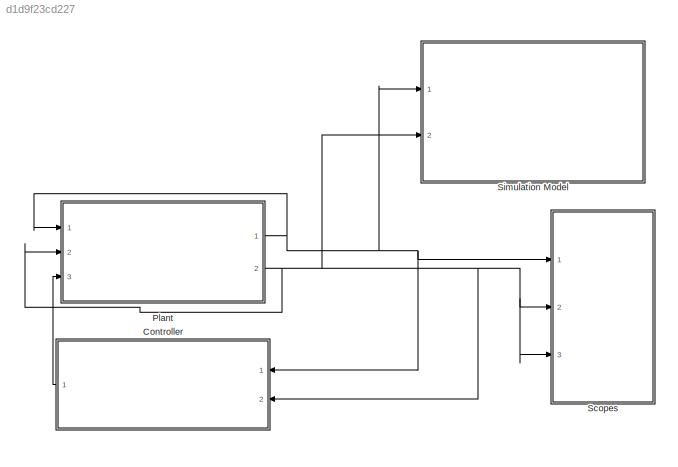
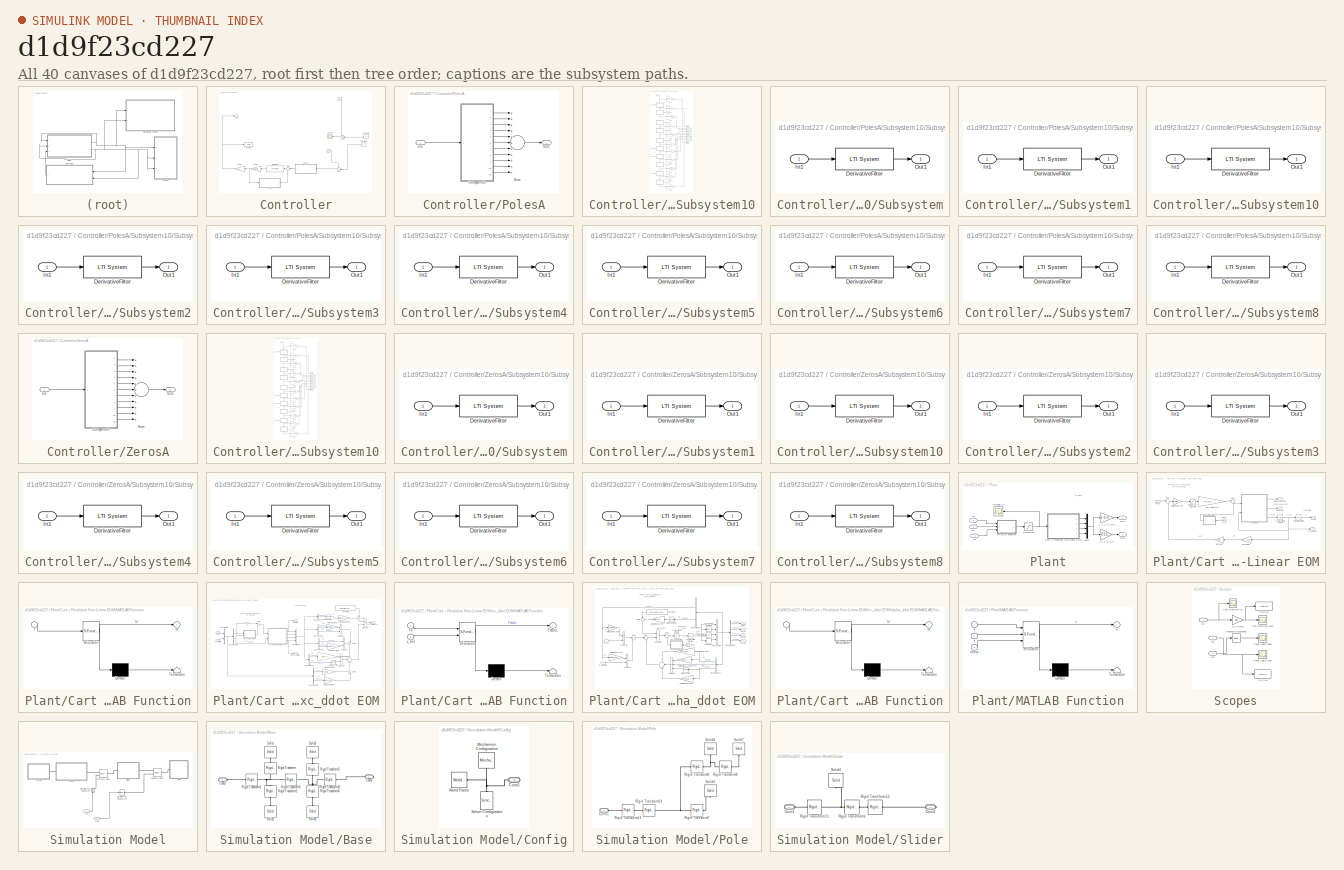
[diagram: thumbnail index - all 40 canvases of the model, root first then tree order]
MODEL slx_d1d9f23cd227
KIND model
CONFIG AbsTol = auto
CONFIG EnableMultiTasking = off
CONFIG FixedStep = auto
CONFIG MaxStep = auto
CONFIG MinStep = auto
CONFIG RelTol = 1e-3
CONFIG SampleTimeConstraint = Unconstrained
CONFIG Solver = VariableStepAuto
CONFIG SolverName = VariableStepAuto
CONFIG StartTime = 0.0
CONFIG StopTime = 40
BLOCK [SubSystem] Controller
  Ports = [2, 1]
  RequestExecContextInheritance = off
BLOCK [Gain] Controller/AGAIN
  OutDataTypeStr = Inherit: Inherit via internal rule
  ParamDataTypeStr = Inherit: Inherit via internal rule
  SaturateOnIntegerOverflow = off
BLOCK [Gain] Controller/AGAIN1
  Gain = invb0
  OutDataTypeStr = Inherit: Inherit via internal rule
  ParamDataTypeStr = Inherit: Inherit via internal rule
  SaturateOnIntegerOverflow = off
BLOCK [Constant] Controller/Constant1
  Value = 0
BLOCK [Constant] Controller/Constant2
  Value = 0
BLOCK [Inport] Controller/In1
  IconDisplay = Port number
BLOCK [Inport] Controller/In2
  IconDisplay = Port number
  Port = 2
BLOCK [Reference] Controller/Integration  REF=cstblocks/LTI System
  Ports = [1, 1]
  SourceBlock = cstblocks/LTI System
  SourceProductBaseCode = CT
  SourceProductName = Control System Toolbox
  SourceType = LTI Block
BLOCK [Outport] Controller/Out1
  IconDisplay = Port number
BLOCK [SubSystem] Controller/PolesA
  Ports = [1, 1]
  RequestExecContextInheritance = off
BLOCK [Inport] Controller/PolesA/In1
  IconDisplay = Port number
BLOCK [Outport] Controller/PolesA/Out1
  IconDisplay = Port number
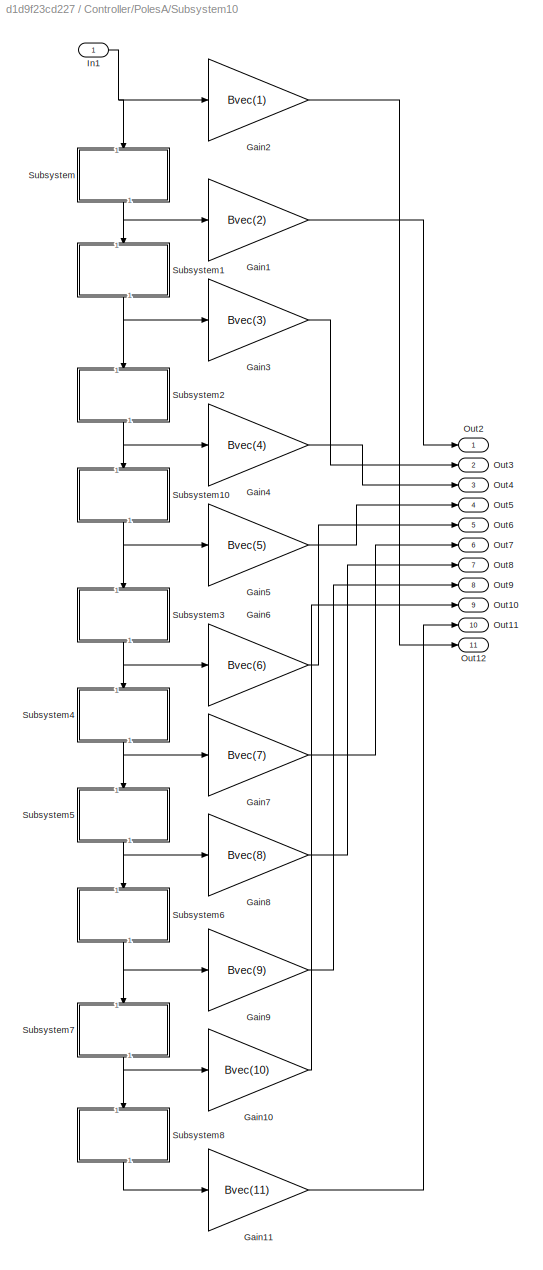
BLOCK [SubSystem] Controller/PolesA/Subsystem10
  Ports = [1, 11]
  RequestExecContextInheritance = off
BLOCK [Gain] Controller/PolesA/Subsystem10/Gain1
  Gain = Bvec(2)
  OutDataTypeStr = Inherit: Inherit via internal rule
  ParamDataTypeStr = Inherit: Inherit via internal rule
  SaturateOnIntegerOverflow = off
BLOCK [Gain] Controller/PolesA/Subsystem10/Gain10
  Gain = Bvec(10)
  OutDataTypeStr = Inherit: Inherit via internal rule
  ParamDataTypeStr = Inherit: Inherit via internal rule
  SaturateOnIntegerOverflow = off
BLOCK [Gain] Controller/PolesA/Subsystem10/Gain11
  Gain = Bvec(11)
  OutDataTypeStr = Inherit: Inherit via internal rule
  ParamDataTypeStr = Inherit: Inherit via internal rule
  SaturateOnIntegerOverflow = off
BLOCK [Gain] Controller/PolesA/Subsystem10/Gain2
  Gain = Bvec(1)
  OutDataTypeStr = Inherit: Inherit via internal rule
  ParamDataTypeStr = Inherit: Inherit via internal rule
  SaturateOnIntegerOverflow = off
BLOCK [Gain] Controller/PolesA/Subsystem10/Gain3
  Gain = Bvec(3)
  OutDataTypeStr = Inherit: Inherit via internal rule
  ParamDataTypeStr = Inherit: Inherit via internal rule
  SaturateOnIntegerOverflow = off
BLOCK [Gain] Controller/PolesA/Subsystem10/Gain4
  Gain = Bvec(4)
  OutDataTypeStr = Inherit: Inherit via internal rule
  ParamDataTypeStr = Inherit: Inherit via internal rule
  SaturateOnIntegerOverflow = off
BLOCK [Gain] Controller/PolesA/Subsystem10/Gain5
  Gain = Bvec(5)
  OutDataTypeStr = Inherit: Inherit via internal rule
  ParamDataTypeStr = Inherit: Inherit via internal rule
  SaturateOnIntegerOverflow = off
BLOCK [Gain] Controller/PolesA/Subsystem10/Gain6
  Gain = Bvec(6)
  OutDataTypeStr = Inherit: Inherit via internal rule
  ParamDataTypeStr = Inherit: Inherit via internal rule
  SaturateOnIntegerOverflow = off
BLOCK [Gain] Controller/PolesA/Subsystem10/Gain7
  Gain = Bvec(7)
  OutDataTypeStr = Inherit: Inherit via internal rule
  ParamDataTypeStr = Inherit: Inherit via internal rule
  SaturateOnIntegerOverflow = off
BLOCK [Gain] Controller/PolesA/Subsystem10/Gain8
  Gain = Bvec(8)
  OutDataTypeStr = Inherit: Inherit via internal rule
  ParamDataTypeStr = Inherit: Inherit via internal rule
  SaturateOnIntegerOverflow = off
BLOCK [Gain] Controller/PolesA/Subsystem10/Gain9
  Gain = Bvec(9)
  OutDataTypeStr = Inherit: Inherit via internal rule
  ParamDataTypeStr = Inherit: Inherit via internal rule
  SaturateOnIntegerOverflow = off
BLOCK [Inport] Controller/PolesA/Subsystem10/In1
  IconDisplay = Port number
BLOCK [Outport] Controller/PolesA/Subsystem10/Out10
  IconDisplay = Port number
  Port = 9
BLOCK [Outport] Controller/PolesA/Subsystem10/Out11
  IconDisplay = Port number
  Port = 10
BLOCK [Outport] Controller/PolesA/Subsystem10/Out12
  IconDisplay = Port number
  Port = 11
BLOCK [Outport] Controller/PolesA/Subsystem10/Out2
  IconDisplay = Port number
BLOCK [Outport] Controller/PolesA/Subsystem10/Out3
  IconDisplay = Port number
  Port = 2
BLOCK [Outport] Controller/PolesA/Subsystem10/Out4
  IconDisplay = Port number
  Port = 3
BLOCK [Outport] Controller/PolesA/Subsystem10/Out5
  IconDisplay = Port number
  Port = 4
BLOCK [Outport] Controller/PolesA/Subsystem10/Out6
  IconDisplay = Port number
  Port = 5
BLOCK [Outport] Controller/PolesA/Subsystem10/Out7
  IconDisplay = Port number
  Port = 6
BLOCK [Outport] Controller/PolesA/Subsystem10/Out8
  IconDisplay = Port number
  Port = 7
BLOCK [Outport] Controller/PolesA/Subsystem10/Out9
  IconDisplay = Port number
  Port = 8
BLOCK [SubSystem] Controller/PolesA/Subsystem10/Subsystem
  Ports = [1, 1]
  RequestExecContextInheritance = off
BLOCK [Reference] Controller/PolesA/Subsystem10/Subsystem/DerivativeFilter  REF=cstblocks/LTI System
  Ports = [1, 1]
  SourceBlock = cstblocks/LTI System
  SourceProductBaseCode = CT
  SourceProductName = Control System Toolbox
  SourceType = LTI Block
BLOCK [Inport] Controller/PolesA/Subsystem10/Subsystem/In1
  IconDisplay = Port number
BLOCK [Outport] Controller/PolesA/Subsystem10/Subsystem/Out1
  IconDisplay = Port number
BLOCK [SubSystem] Controller/PolesA/Subsystem10/Subsystem1
  Ports = [1, 1]
  RequestExecContextInheritance = off
BLOCK [Reference] Controller/PolesA/Subsystem10/Subsystem1/DerivativeFilter  REF=cstblocks/LTI System
  Ports = [1, 1]
  SourceBlock = cstblocks/LTI System
  SourceProductBaseCode = CT
  SourceProductName = Control System Toolbox
  SourceType = LTI Block
BLOCK [Inport] Controller/PolesA/Subsystem10/Subsystem1/In1
  IconDisplay = Port number
BLOCK [Outport] Controller/PolesA/Subsystem10/Subsystem1/Out1
  IconDisplay = Port number
BLOCK [SubSystem] Controller/PolesA/Subsystem10/Subsystem10
  Ports = [1, 1]
  RequestExecContextInheritance = off
BLOCK [Reference] Controller/PolesA/Subsystem10/Subsystem10/DerivativeFilter  REF=cstblocks/LTI System
  Ports = [1, 1]
  SourceBlock = cstblocks/LTI System
  SourceProductBaseCode = CT
  SourceProductName = Control System Toolbox
  SourceType = LTI Block
BLOCK [Inport] Controller/PolesA/Subsystem10/Subsystem10/In1
  IconDisplay = Port number
BLOCK [Outport] Controller/PolesA/Subsystem10/Subsystem10/Out1
  IconDisplay = Port number
BLOCK [SubSystem] Controller/PolesA/Subsystem10/Subsystem2
  Ports = [1, 1]
  RequestExecContextInheritance = off
BLOCK [Reference] Controller/PolesA/Subsystem10/Subsystem2/DerivativeFilter  REF=cstblocks/LTI System
  Ports = [1, 1]
  SourceBlock = cstblocks/LTI System
  SourceProductBaseCode = CT
  SourceProductName = Control System Toolbox
  SourceType = LTI Block
BLOCK [Inport] Controller/PolesA/Subsystem10/Subsystem2/In1
  IconDisplay = Port number
BLOCK [Outport] Controller/PolesA/Subsystem10/Subsystem2/Out1
  IconDisplay = Port number
BLOCK [SubSystem] Controller/PolesA/Subsystem10/Subsystem3
  Ports = [1, 1]
  RequestExecContextInheritance = off
BLOCK [Reference] Controller/PolesA/Subsystem10/Subsystem3/DerivativeFilter  REF=cstblocks/LTI System
  Ports = [1, 1]
  SourceBlock = cstblocks/LTI System
  SourceProductBaseCode = CT
  SourceProductName = Control System Toolbox
  SourceType = LTI Block
BLOCK [Inport] Controller/PolesA/Subsystem10/Subsystem3/In1
  IconDisplay = Port number
BLOCK [Outport] Controller/PolesA/Subsystem10/Subsystem3/Out1
  IconDisplay = Port number
BLOCK [SubSystem] Controller/PolesA/Subsystem10/Subsystem4
  Ports = [1, 1]
  RequestExecContextInheritance = off
BLOCK [Reference] Controller/PolesA/Subsystem10/Subsystem4/DerivativeFilter  REF=cstblocks/LTI System
  Ports = [1, 1]
  SourceBlock = cstblocks/LTI System
  SourceProductBaseCode = CT
  SourceProductName = Control System Toolbox
  SourceType = LTI Block
BLOCK [Inport] Controller/PolesA/Subsystem10/Subsystem4/In1
  IconDisplay = Port number
BLOCK [Outport] Controller/PolesA/Subsystem10/Subsystem4/Out1
  IconDisplay = Port number
BLOCK [SubSystem] Controller/PolesA/Subsystem10/Subsystem5
  Ports = [1, 1]
  RequestExecContextInheritance = off
BLOCK [Reference] Controller/PolesA/Subsystem10/Subsystem5/DerivativeFilter  REF=cstblocks/LTI System
  Ports = [1, 1]
  SourceBlock = cstblocks/LTI System
  SourceProductBaseCode = CT
  SourceProductName = Control System Toolbox
  SourceType = LTI Block
BLOCK [Inport] Controller/PolesA/Subsystem10/Subsystem5/In1
  IconDisplay = Port number
BLOCK [Outport] Controller/PolesA/Subsystem10/Subsystem5/Out1
  IconDisplay = Port number
BLOCK [SubSystem] Controller/PolesA/Subsystem10/Subsystem6
  Ports = [1, 1]
  RequestExecContextInheritance = off
BLOCK [Reference] Controller/PolesA/Subsystem10/Subsystem6/DerivativeFilter  REF=cstblocks/LTI System
  Ports = [1, 1]
  SourceBlock = cstblocks/LTI System
  SourceProductBaseCode = CT
  SourceProductName = Control System Toolbox
  SourceType = LTI Block
BLOCK [Inport] Controller/PolesA/Subsystem10/Subsystem6/In1
  IconDisplay = Port number
BLOCK [Outport] Controller/PolesA/Subsystem10/Subsystem6/Out1
  IconDisplay = Port number
BLOCK [SubSystem] Controller/PolesA/Subsystem10/Subsystem7
  Ports = [1, 1]
  RequestExecContextInheritance = off
BLOCK [Reference] Controller/PolesA/Subsystem10/Subsystem7/DerivativeFilter  REF=cstblocks/LTI System
  Ports = [1, 1]
  SourceBlock = cstblocks/LTI System
  SourceProductBaseCode = CT
  SourceProductName = Control System Toolbox
  SourceType = LTI Block
BLOCK [Inport] Controller/PolesA/Subsystem10/Subsystem7/In1
  IconDisplay = Port number
BLOCK [Outport] Controller/PolesA/Subsystem10/Subsystem7/Out1
  IconDisplay = Port number
BLOCK [SubSystem] Controller/PolesA/Subsystem10/Subsystem8
  Ports = [1, 1]
  RequestExecContextInheritance = off
BLOCK [Reference] Controller/PolesA/Subsystem10/Subsystem8/DerivativeFilter  REF=cstblocks/LTI System
  Ports = [1, 1]
  SourceBlock = cstblocks/LTI System
  SourceProductBaseCode = CT
  SourceProductName = Control System Toolbox
  SourceType = LTI Block
BLOCK [Inport] Controller/PolesA/Subsystem10/Subsystem8/In1
  IconDisplay = Port number
BLOCK [Outport] Controller/PolesA/Subsystem10/Subsystem8/Out1
  IconDisplay = Port number
BLOCK [Sum] Controller/PolesA/Sum
  InputSameDT = off
  Inputs = +++++++++++
  OutDataTypeStr = Inherit: Inherit via internal rule
  Ports = [11, 1]
  SaturateOnIntegerOverflow = off
BLOCK [Scope] Controller/Scope
  Floating = off
  NumInputPorts = 1
  Ports = [1]
  ScopeSpecificationString = Simulink.scopes.TimeScopeBlockCfg('CurrentConfiguration', extmgr.ConfigurationSet(extmgr.Configuration('Core','General UI',true),extmgr.Configuration('Core','Source UI',true),extmgr.Configuration('Sources','WiredSimulink',true,'DataLoggingVariableName','ScopeData1'),extmgr.Configuration('Visuals','Time Domain',true),extmgr.Configuration('Tools','Plot Navigation',true),extmgr.Configuration('Tools',...<+40ch>
BLOCK [Sum] Controller/Sum2
  IconShape = round
  InputSameDT = off
  Inputs = -+|
  OutDataTypeStr = Inherit: Inherit via internal rule
  Ports = [2, 1]
  SaturateOnIntegerOverflow = off
BLOCK [Sum] Controller/Sum3
  IconShape = round
  InputSameDT = off
  Inputs = -+|
  OutDataTypeStr = Inherit: Inherit via internal rule
  Ports = [2, 1]
  SaturateOnIntegerOverflow = off
BLOCK [Sum] Controller/Sum5
  IconShape = round
  InputSameDT = off
  Inputs = |+-
  OutDataTypeStr = Inherit: Inherit via internal rule
  Ports = [2, 1]
  SaturateOnIntegerOverflow = off
BLOCK [ToFile] Controller/To File2
  Filename = voltage.mat
  MatrixName = voltageData
  Ports = [1]
BLOCK [SubSystem] Controller/ZerosA
  Ports = [1, 1]
  RequestExecContextInheritance = off
BLOCK [Inport] Controller/ZerosA/In1
  IconDisplay = Port number
BLOCK [Outport] Controller/ZerosA/Out1
  IconDisplay = Port number
BLOCK [SubSystem] Controller/ZerosA/Subsystem10
  Ports = [1, 11]
  RequestExecContextInheritance = off
BLOCK [Gain] Controller/ZerosA/Subsystem10/Gain1
  Gain = Avec(2)
  OutDataTypeStr = Inherit: Inherit via internal rule
  ParamDataTypeStr = Inherit: Inherit via internal rule
  SaturateOnIntegerOverflow = off
BLOCK [Gain] Controller/ZerosA/Subsystem10/Gain10
  Gain = Avec(10)
  OutDataTypeStr = Inherit: Inherit via internal rule
  ParamDataTypeStr = Inherit: Inherit via internal rule
  SaturateOnIntegerOverflow = off
BLOCK [Gain] Controller/ZerosA/Subsystem10/Gain11
  Gain = Avec(11)
  OutDataTypeStr = Inherit: Inherit via internal rule
  ParamDataTypeStr = Inherit: Inherit via internal rule
  SaturateOnIntegerOverflow = off
BLOCK [Gain] Controller/ZerosA/Subsystem10/Gain2
  Gain = Avec(1)
  OutDataTypeStr = Inherit: Inherit via internal rule
  ParamDataTypeStr = Inherit: Inherit via internal rule
  SaturateOnIntegerOverflow = off
BLOCK [Gain] Controller/ZerosA/Subsystem10/Gain3
  Gain = Avec(3)
  OutDataTypeStr = Inherit: Inherit via internal rule
  ParamDataTypeStr = Inherit: Inherit via internal rule
  SaturateOnIntegerOverflow = off
BLOCK [Gain] Controller/ZerosA/Subsystem10/Gain4
  Gain = Avec(4)
  OutDataTypeStr = Inherit: Inherit via internal rule
  ParamDataTypeStr = Inherit: Inherit via internal rule
  SaturateOnIntegerOverflow = off
BLOCK [Gain] Controller/ZerosA/Subsystem10/Gain5
  Gain = Avec(5)
  OutDataTypeStr = Inherit: Inherit via internal rule
  ParamDataTypeStr = Inherit: Inherit via internal rule
  SaturateOnIntegerOverflow = off
BLOCK [Gain] Controller/ZerosA/Subsystem10/Gain6
  Gain = Avec(6)
  OutDataTypeStr = Inherit: Inherit via internal rule
  ParamDataTypeStr = Inherit: Inherit via internal rule
  SaturateOnIntegerOverflow = off
BLOCK [Gain] Controller/ZerosA/Subsystem10/Gain7
  Gain = Avec(7)
  OutDataTypeStr = Inherit: Inherit via internal rule
  ParamDataTypeStr = Inherit: Inherit via internal rule
  SaturateOnIntegerOverflow = off
BLOCK [Gain] Controller/ZerosA/Subsystem10/Gain8
  Gain = Avec(8)
  OutDataTypeStr = Inherit: Inherit via internal rule
  ParamDataTypeStr = Inherit: Inherit via internal rule
  SaturateOnIntegerOverflow = off
BLOCK [Gain] Controller/ZerosA/Subsystem10/Gain9
  Gain = Avec(9)
  OutDataTypeStr = Inherit: Inherit via internal rule
  ParamDataTypeStr = Inherit: Inherit via internal rule
  SaturateOnIntegerOverflow = off
BLOCK [Inport] Controller/ZerosA/Subsystem10/In1
  IconDisplay = Port number
BLOCK [Outport] Controller/ZerosA/Subsystem10/Out10
  IconDisplay = Port number
  Port = 9
BLOCK [Outport] Controller/ZerosA/Subsystem10/Out11
  IconDisplay = Port number
  Port = 10
BLOCK [Outport] Controller/ZerosA/Subsystem10/Out12
  IconDisplay = Port number
  Port = 11
BLOCK [Outport] Controller/ZerosA/Subsystem10/Out2
  IconDisplay = Port number
BLOCK [Outport] Controller/ZerosA/Subsystem10/Out3
  IconDisplay = Port number
  Port = 2
BLOCK [Outport] Controller/ZerosA/Subsystem10/Out4
  IconDisplay = Port number
  Port = 3
BLOCK [Outport] Controller/ZerosA/Subsystem10/Out5
  IconDisplay = Port number
  Port = 4
BLOCK [Outport] Controller/ZerosA/Subsystem10/Out6
  IconDisplay = Port number
  Port = 5
BLOCK [Outport] Controller/ZerosA/Subsystem10/Out7
  IconDisplay = Port number
  Port = 6
BLOCK [Outport] Controller/ZerosA/Subsystem10/Out8
  IconDisplay = Port number
  Port = 7
BLOCK [Outport] Controller/ZerosA/Subsystem10/Out9
  IconDisplay = Port number
  Port = 8
BLOCK [SubSystem] Controller/ZerosA/Subsystem10/Subsystem
  Ports = [1, 1]
  RequestExecContextInheritance = off
BLOCK [Reference] Controller/ZerosA/Subsystem10/Subsystem/DerivativeFilter  REF=cstblocks/LTI System
  Ports = [1, 1]
  SourceBlock = cstblocks/LTI System
  SourceProductBaseCode = CT
  SourceProductName = Control System Toolbox
  SourceType = LTI Block
BLOCK [Inport] Controller/ZerosA/Subsystem10/Subsystem/In1
  IconDisplay = Port number
BLOCK [Outport] Controller/ZerosA/Subsystem10/Subsystem/Out1
  IconDisplay = Port number
BLOCK [SubSystem] Controller/ZerosA/Subsystem10/Subsystem1
  Ports = [1, 1]
  RequestExecContextInheritance = off
BLOCK [Reference] Controller/ZerosA/Subsystem10/Subsystem1/DerivativeFilter  REF=cstblocks/LTI System
  Ports = [1, 1]
  SourceBlock = cstblocks/LTI System
  SourceProductBaseCode = CT
  SourceProductName = Control System Toolbox
  SourceType = LTI Block
BLOCK [Inport] Controller/ZerosA/Subsystem10/Subsystem1/In1
  IconDisplay = Port number
BLOCK [Outport] Controller/ZerosA/Subsystem10/Subsystem1/Out1
  IconDisplay = Port number
BLOCK [SubSystem] Controller/ZerosA/Subsystem10/Subsystem10
  Ports = [1, 1]
  RequestExecContextInheritance = off
BLOCK [Reference] Controller/ZerosA/Subsystem10/Subsystem10/DerivativeFilter  REF=cstblocks/LTI System
  Ports = [1, 1]
  SourceBlock = cstblocks/LTI System
  SourceProductBaseCode = CT
  SourceProductName = Control System Toolbox
  SourceType = LTI Block
BLOCK [Inport] Controller/ZerosA/Subsystem10/Subsystem10/In1
  IconDisplay = Port number
BLOCK [Outport] Controller/ZerosA/Subsystem10/Subsystem10/Out1
  IconDisplay = Port number
BLOCK [SubSystem] Controller/ZerosA/Subsystem10/Subsystem2
  Ports = [1, 1]
  RequestExecContextInheritance = off
BLOCK [Reference] Controller/ZerosA/Subsystem10/Subsystem2/DerivativeFilter  REF=cstblocks/LTI System
  Ports = [1, 1]
  SourceBlock = cstblocks/LTI System
  SourceProductBaseCode = CT
  SourceProductName = Control System Toolbox
  SourceType = LTI Block
BLOCK [Inport] Controller/ZerosA/Subsystem10/Subsystem2/In1
  IconDisplay = Port number
BLOCK [Outport] Controller/ZerosA/Subsystem10/Subsystem2/Out1
  IconDisplay = Port number
BLOCK [SubSystem] Controller/ZerosA/Subsystem10/Subsystem3
  Ports = [1, 1]
  RequestExecContextInheritance = off
BLOCK [Reference] Controller/ZerosA/Subsystem10/Subsystem3/DerivativeFilter  REF=cstblocks/LTI System
  Ports = [1, 1]
  SourceBlock = cstblocks/LTI System
  SourceProductBaseCode = CT
  SourceProductName = Control System Toolbox
  SourceType = LTI Block
BLOCK [Inport] Controller/ZerosA/Subsystem10/Subsystem3/In1
  IconDisplay = Port number
BLOCK [Outport] Controller/ZerosA/Subsystem10/Subsystem3/Out1
  IconDisplay = Port number
BLOCK [SubSystem] Controller/ZerosA/Subsystem10/Subsystem4
  Ports = [1, 1]
  RequestExecContextInheritance = off
BLOCK [Reference] Controller/ZerosA/Subsystem10/Subsystem4/DerivativeFilter  REF=cstblocks/LTI System
  Ports = [1, 1]
  SourceBlock = cstblocks/LTI System
  SourceProductBaseCode = CT
  SourceProductName = Control System Toolbox
  SourceType = LTI Block
BLOCK [Inport] Controller/ZerosA/Subsystem10/Subsystem4/In1
  IconDisplay = Port number
BLOCK [Outport] Controller/ZerosA/Subsystem10/Subsystem4/Out1
  IconDisplay = Port number
BLOCK [SubSystem] Controller/ZerosA/Subsystem10/Subsystem5
  Ports = [1, 1]
  RequestExecContextInheritance = off
BLOCK [Reference] Controller/ZerosA/Subsystem10/Subsystem5/DerivativeFilter  REF=cstblocks/LTI System
  Ports = [1, 1]
  SourceBlock = cstblocks/LTI System
  SourceProductBaseCode = CT
  SourceProductName = Control System Toolbox
  SourceType = LTI Block
BLOCK [Inport] Controller/ZerosA/Subsystem10/Subsystem5/In1
  IconDisplay = Port number
BLOCK [Outport] Controller/ZerosA/Subsystem10/Subsystem5/Out1
  IconDisplay = Port number
BLOCK [SubSystem] Controller/ZerosA/Subsystem10/Subsystem6
  Ports = [1, 1]
  RequestExecContextInheritance = off
BLOCK [Reference] Controller/ZerosA/Subsystem10/Subsystem6/DerivativeFilter  REF=cstblocks/LTI System
  Ports = [1, 1]
  SourceBlock = cstblocks/LTI System
  SourceProductBaseCode = CT
  SourceProductName = Control System Toolbox
  SourceType = LTI Block
BLOCK [Inport] Controller/ZerosA/Subsystem10/Subsystem6/In1
  IconDisplay = Port number
BLOCK [Outport] Controller/ZerosA/Subsystem10/Subsystem6/Out1
  IconDisplay = Port number
BLOCK [SubSystem] Controller/ZerosA/Subsystem10/Subsystem7
  Ports = [1, 1]
  RequestExecContextInheritance = off
BLOCK [Reference] Controller/ZerosA/Subsystem10/Subsystem7/DerivativeFilter  REF=cstblocks/LTI System
  Ports = [1, 1]
  SourceBlock = cstblocks/LTI System
  SourceProductBaseCode = CT
  SourceProductName = Control System Toolbox
  SourceType = LTI Block
BLOCK [Inport] Controller/ZerosA/Subsystem10/Subsystem7/In1
  IconDisplay = Port number
BLOCK [Outport] Controller/ZerosA/Subsystem10/Subsystem7/Out1
  IconDisplay = Port number
BLOCK [SubSystem] Controller/ZerosA/Subsystem10/Subsystem8
  Ports = [1, 1]
  RequestExecContextInheritance = off
BLOCK [Reference] Controller/ZerosA/Subsystem10/Subsystem8/DerivativeFilter  REF=cstblocks/LTI System
  Ports = [1, 1]
  SourceBlock = cstblocks/LTI System
  SourceProductBaseCode = CT
  SourceProductName = Control System Toolbox
  SourceType = LTI Block
BLOCK [Inport] Controller/ZerosA/Subsystem10/Subsystem8/In1
  IconDisplay = Port number
BLOCK [Outport] Controller/ZerosA/Subsystem10/Subsystem8/Out1
  IconDisplay = Port number
BLOCK [Sum] Controller/ZerosA/Sum
  InputSameDT = off
  Inputs = +++++++++++
  OutDataTypeStr = Inherit: Inherit via internal rule
  Ports = [11, 1]
  SaturateOnIntegerOverflow = off
BLOCK [SubSystem] Plant
  Ports = [3, 2]
  RequestExecContextInheritance = off
BLOCK [SubSystem] Plant/Cart + Pendulum Non-Linear EOM
  Ports = [1, 4]
  RequestExecContextInheritance = off
BLOCK [Integrator] Plant/Cart + Pendulum Non-Linear EOM/Acceleration to Velocity
  Ports = [1, 1]
BLOCK [Gain] Plant/Cart + Pendulum Non-Linear EOM/Back EMF
  Gain = Km
BLOCK [Gain] Plant/Cart + Pendulum Non-Linear EOM/Back EMF1
  Gain = Kg/r_mp
BLOCK [Clock] Plant/Cart + Pendulum Non-Linear EOM/Clock
BLOCK [Gain] Plant/Cart + Pendulum Non-Linear EOM/Current to Force
  Gain = Eff_g*Kg*Eff_m*Kt/r_mp
BLOCK [SubSystem] Plant/Cart + Pendulum Non-Linear EOM/MATLAB Function
  ErrorFcn = Stateflow.Translate.translate
  PermitHierarchicalResolution = ExplicitOnly
  Ports = [1, 1]
  RequestExecContextInheritance = off
  SFBlockType = MATLAB Function
  TreatAsAtomicUnit = on
BLOCK [Demux] Plant/Cart + Pendulum Non-Linear EOM/MATLAB Function/ Demux 
  Outputs = 1
  Ports = [1, 1]
BLOCK [S-Function] Plant/Cart + Pendulum Non-Linear EOM/MATLAB Function/ SFunction 
  EnableBusSupport = on
  FunctionName = sf_sfun
  PortCounts = [1 2]
  Ports = [1, 2]
  SFcnIsStateOwnerBlock = off
  SFunctionDeploymentMode = off
  Tag = Stateflow S-Function pendOnlyWithTFim 1
BLOCK [Terminator] Plant/Cart + Pendulum Non-Linear EOM/MATLAB Function/ Terminator 
BLOCK [Outport] Plant/Cart + Pendulum Non-Linear EOM/MATLAB Function/fd
  IconDisplay = Port number
BLOCK [Inport] Plant/Cart + Pendulum Non-Linear EOM/MATLAB Function/t
  IconDisplay = Port number
BLOCK [Sum] Plant/Cart + Pendulum Non-Linear EOM/Sum
  IconShape = round
  Inputs = |+-
  Ports = [2, 1]
BLOCK [Sum] Plant/Cart + Pendulum Non-Linear EOM/Sum1
  IconShape = round
  Inputs = |++
  Ports = [2, 1]
BLOCK [Saturate] Plant/Cart + Pendulum Non-Linear EOM/UPM Current Saturation 
  InputPortMap = u0
  LowerLimit = - IMAX_UPM
  Ports = [1, 1]
  UpperLimit = IMAX_UPM
BLOCK [Integrator] Plant/Cart + Pendulum Non-Linear EOM/Velocity to Position
  Ports = [1, 1]
BLOCK [Inport] Plant/Cart + Pendulum Non-Linear EOM/Vm (V)
  IconDisplay = Port number
BLOCK [Gain] Plant/Cart + Pendulum Non-Linear EOM/Voltage to Current
  Gain = 1/Rm
BLOCK [Outport] Plant/Cart + Pendulum Non-Linear EOM/alpha (rd)
  IconDisplay = Port number
  Port = 2
BLOCK [Outport] Plant/Cart + Pendulum Non-Linear EOM/alpha_dot (rd//s)
  IconDisplay = Port number
  InitialOutput = 0
  Port = 4
BLOCK [Outport] Plant/Cart + Pendulum Non-Linear EOM/xc (m)
  IconDisplay = Port number
BLOCK [SubSystem] Plant/Cart + Pendulum Non-Linear EOM/xc_ddot EOM
  Ports = [2, 3]
  RequestExecContextInheritance = off
BLOCK [BusCreator] Plant/Cart + Pendulum Non-Linear EOM/xc_ddot EOM/Bus Creator
  DisplayOption = bar
  InheritFromInputs = on
  Inputs = 4
  Ports = [4, 1]
BLOCK [BusCreator] Plant/Cart + Pendulum Non-Linear EOM/xc_ddot EOM/Bus Creator1
  DisplayOption = bar
  InheritFromInputs = on
  Inputs = 2
  Ports = [2, 1]
BLOCK [BusSelector] Plant/Cart + Pendulum Non-Linear EOM/xc_ddot EOM/Bus Selector1
  OutputAsBus = off
  OutputSignals = signal2,signal4
  Ports = [1, 2]
BLOCK [BusSelector] Plant/Cart + Pendulum Non-Linear EOM/xc_ddot EOM/Bus Selector2
  OutputAsBus = off
  OutputSignals = signal2,signal3
  Ports = [1, 2]
BLOCK [BusSelector] Plant/Cart + Pendulum Non-Linear EOM/xc_ddot EOM/Bus Selector3
  OutputAsBus = off
  OutputSignals = signal2
  Ports = [1, 1]
BLOCK [BusSelector] Plant/Cart + Pendulum Non-Linear EOM/xc_ddot EOM/Bus Selector4
  OutputAsBus = off
  OutputSignals = signal1,signal2
  Ports = [1, 2]
BLOCK [BusSelector] Plant/Cart + Pendulum Non-Linear EOM/xc_ddot EOM/Bus Selector5
  OutputAsBus = off
  OutputSignals = signal1,signal2
  Ports = [1, 2]
BLOCK [BusSelector] Plant/Cart + Pendulum Non-Linear EOM/xc_ddot EOM/Bus Selector6
  OutputAsBus = off
  OutputSignals = signal3,signal4
  Ports = [1, 2]
BLOCK [Constant] Plant/Cart + Pendulum Non-Linear EOM/xc_ddot EOM/Constant2
  Value = (Mc+Mp)*Ip+Mc*Mp*lp^2
BLOCK [Inport] Plant/Cart + Pendulum Non-Linear EOM/xc_ddot EOM/Fc (N)
  IconDisplay = Port number
BLOCK [SubSystem] Plant/Cart + Pendulum Non-Linear EOM/xc_ddot EOM/MATLAB Function
  ErrorFcn = Stateflow.Translate.translate
  PermitHierarchicalResolution = ExplicitOnly
  Ports = [2, 1]
  RequestExecContextInheritance = off
  SFBlockType = MATLAB Function
  TreatAsAtomicUnit = on
BLOCK [Demux] Plant/Cart + Pendulum Non-Linear EOM/xc_ddot EOM/MATLAB Function/ Demux 
  Outputs = 1
  Ports = [1, 1]
BLOCK [S-Function] Plant/Cart + Pendulum Non-Linear EOM/xc_ddot EOM/MATLAB Function/ SFunction 
  EnableBusSupport = on
  FunctionName = sf_sfun
  PortCounts = [2 2]
  Ports = [2, 2]
  SFcnIsStateOwnerBlock = off
  SFunctionDeploymentMode = off
  Tag = Stateflow S-Function pendOnlyWithTFim 2
BLOCK [Terminator] Plant/Cart + Pendulum Non-Linear EOM/xc_ddot EOM/MATLAB Function/ Terminator 
BLOCK [Outport] Plant/Cart + Pendulum Non-Linear EOM/xc_ddot EOM/MATLAB Function/Fstatic
  IconDisplay = Port number
BLOCK [Inport] Plant/Cart + Pendulum Non-Linear EOM/xc_ddot EOM/MATLAB Function/Fx
  IconDisplay = Port number
BLOCK [Inport] Plant/Cart + Pendulum Non-Linear EOM/xc_ddot EOM/MATLAB Function/x_dot
  IconDisplay = Port number
  Port = 2
BLOCK [Math] Plant/Cart + Pendulum Non-Linear EOM/xc_ddot EOM/Math Function
  Operator = square
  Ports = [1, 1]
BLOCK [Math] Plant/Cart + Pendulum Non-Linear EOM/xc_ddot EOM/Math Function1
  Operator = square
  Ports = [1, 1]
BLOCK [Product] Plant/Cart + Pendulum Non-Linear EOM/xc_ddot EOM/Product1
  Ports = [2, 1]
BLOCK [Product] Plant/Cart + Pendulum Non-Linear EOM/xc_ddot EOM/Product2
  Ports = [2, 1]
BLOCK [Product] Plant/Cart + Pendulum Non-Linear EOM/xc_ddot EOM/Product3
  Ports = [2, 1]
BLOCK [Product] Plant/Cart + Pendulum Non-Linear EOM/xc_ddot EOM/Product4
  Inputs = /*
  Ports = [2, 1]
BLOCK [Sum] Plant/Cart + Pendulum Non-Linear EOM/xc_ddot EOM/Sum
  IconShape = round
  InputSameDT = off
  Inputs = |++
  OutDataTypeStr = Inherit: Inherit via internal rule
  Ports = [2, 1]
  SaturateOnIntegerOverflow = off
BLOCK [Sum] Plant/Cart + Pendulum Non-Linear EOM/xc_ddot EOM/Sum2
  IconShape = round
  Inputs = ++|
  Ports = [2, 1]
BLOCK [Sum] Plant/Cart + Pendulum Non-Linear EOM/xc_ddot EOM/Sum3
  IconShape = round
  Inputs = +-|
  Ports = [2, 1]
BLOCK [Sum] Plant/Cart + Pendulum Non-Linear EOM/xc_ddot EOM/Sum5
  IconShape = round
  Inputs = +-|
  Ports = [2, 1]
BLOCK [Sum] Plant/Cart + Pendulum Non-Linear EOM/xc_ddot EOM/Sum7
  IconShape = round
  Inputs = +|-|+
  Ports = [3, 1]
BLOCK [Gain] Plant/Cart + Pendulum Non-Linear EOM/xc_ddot EOM/Voltage to Current1
  Gain = (Mp^2*lp^3+Ip*Mp*lp)
BLOCK [Gain] Plant/Cart + Pendulum Non-Linear EOM/xc_ddot EOM/Voltage to Current2
  Gain = Mp^2*lp^2*g
BLOCK [Gain] Plant/Cart + Pendulum Non-Linear EOM/xc_ddot EOM/Voltage to Current3
  Gain = Mp^2*lp^2
BLOCK [Gain] Plant/Cart + Pendulum Non-Linear EOM/xc_ddot EOM/Voltage to Current4
  Gain = Beq*(Mp*lp^2+Ip)
BLOCK [Gain] Plant/Cart + Pendulum Non-Linear EOM/xc_ddot EOM/Voltage to Current5
  Gain = Bp*Mp*lp
BLOCK [Gain] Plant/Cart + Pendulum Non-Linear EOM/xc_ddot EOM/Voltage to Current6
  Gain = Mp*lp^2+Ip
BLOCK [Outport] Plant/Cart + Pendulum Non-Linear EOM/xc_ddot EOM/alpha (rd)
  IconDisplay = Port number
  Port = 2
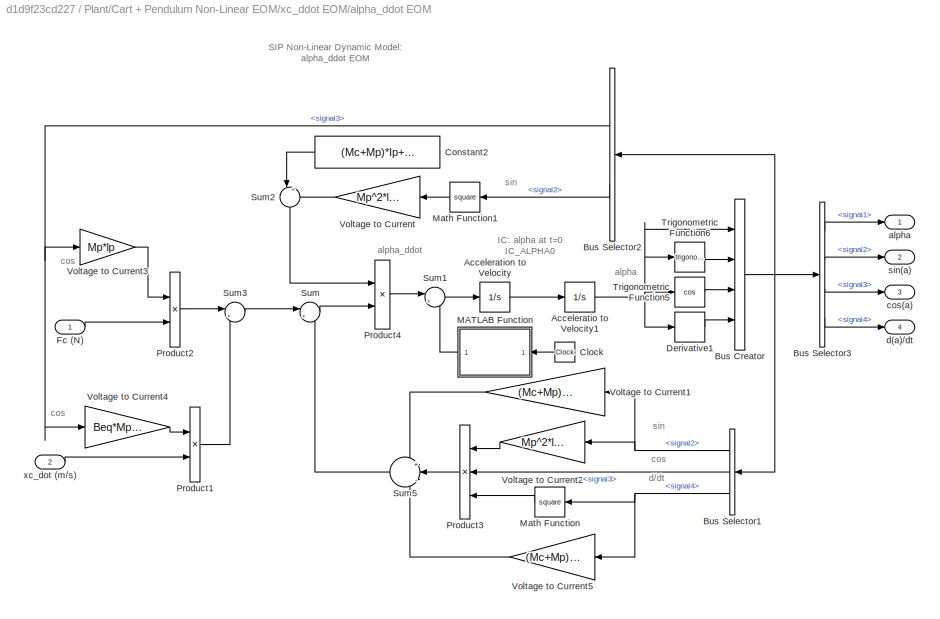
BLOCK [SubSystem] Plant/Cart + Pendulum Non-Linear EOM/xc_ddot EOM/alpha_ddot EOM
  Ports = [2, 4]
  RequestExecContextInheritance = off
BLOCK [Integrator] Plant/Cart + Pendulum Non-Linear EOM/xc_ddot EOM/alpha_ddot EOM/Acceleratio to Velocity1
  Ports = [1, 1]
BLOCK [Integrator] Plant/Cart + Pendulum Non-Linear EOM/xc_ddot EOM/alpha_ddot EOM/Acceleration to Velocity
  Ports = [1, 1]
BLOCK [BusCreator] Plant/Cart + Pendulum Non-Linear EOM/xc_ddot EOM/alpha_ddot EOM/Bus Creator
  DisplayOption = bar
  InheritFromInputs = on
  Inputs = 4
  Ports = [4, 1]
BLOCK [BusSelector] Plant/Cart + Pendulum Non-Linear EOM/xc_ddot EOM/alpha_ddot EOM/Bus Selector1
  OutputAsBus = off
  OutputSignals = signal2,signal3,signal4
  Ports = [1, 3]
BLOCK [BusSelector] Plant/Cart + Pendulum Non-Linear EOM/xc_ddot EOM/alpha_ddot EOM/Bus Selector2
  OutputAsBus = off
  OutputSignals = signal3,signal2
  Ports = [1, 2]
BLOCK [BusSelector] Plant/Cart + Pendulum Non-Linear EOM/xc_ddot EOM/alpha_ddot EOM/Bus Selector3
  OutputAsBus = off
  OutputSignals = signal1,signal2,signal3,signal4
  Ports = [1, 4]
BLOCK [Clock] Plant/Cart + Pendulum Non-Linear EOM/xc_ddot EOM/alpha_ddot EOM/Clock
BLOCK [Constant] Plant/Cart + Pendulum Non-Linear EOM/xc_ddot EOM/alpha_ddot EOM/Constant2
  Value = (Mc+Mp)*Ip+Mc*Mp*lp^2
BLOCK [Derivative] Plant/Cart + Pendulum Non-Linear EOM/xc_ddot EOM/alpha_ddot EOM/Derivative1
BLOCK [Inport] Plant/Cart + Pendulum Non-Linear EOM/xc_ddot EOM/alpha_ddot EOM/Fc (N)
  IconDisplay = Port number
BLOCK [SubSystem] Plant/Cart + Pendulum Non-Linear EOM/xc_ddot EOM/alpha_ddot EOM/MATLAB Function
  ErrorFcn = Stateflow.Translate.translate
  PermitHierarchicalResolution = ExplicitOnly
  Ports = [1, 1]
  RequestExecContextInheritance = off
  SFBlockType = MATLAB Function
  TreatAsAtomicUnit = on
BLOCK [Demux] Plant/Cart + Pendulum Non-Linear EOM/xc_ddot EOM/alpha_ddot EOM/MATLAB Function/ Demux 
  Outputs = 1
  Ports = [1, 1]
BLOCK [S-Function] Plant/Cart + Pendulum Non-Linear EOM/xc_ddot EOM/alpha_ddot EOM/MATLAB Function/ SFunction 
  EnableBusSupport = on
  FunctionName = sf_sfun
  PortCounts = [1 2]
  Ports = [1, 2]
  SFcnIsStateOwnerBlock = off
  SFunctionDeploymentMode = off
  Tag = Stateflow S-Function pendOnlyWithTFim 3
BLOCK [Terminator] Plant/Cart + Pendulum Non-Linear EOM/xc_ddot EOM/alpha_ddot EOM/MATLAB Function/ Terminator 
BLOCK [Outport] Plant/Cart + Pendulum Non-Linear EOM/xc_ddot EOM/alpha_ddot EOM/MATLAB Function/fd
  IconDisplay = Port number
BLOCK [Inport] Plant/Cart + Pendulum Non-Linear EOM/xc_ddot EOM/alpha_ddot EOM/MATLAB Function/t
  IconDisplay = Port number
BLOCK [Math] Plant/Cart + Pendulum Non-Linear EOM/xc_ddot EOM/alpha_ddot EOM/Math Function
  Operator = square
  Ports = [1, 1]
BLOCK [Math] Plant/Cart + Pendulum Non-Linear EOM/xc_ddot EOM/alpha_ddot EOM/Math Function1
  Operator = square
  Ports = [1, 1]
BLOCK [Product] Plant/Cart + Pendulum Non-Linear EOM/xc_ddot EOM/alpha_ddot EOM/Product1
  Ports = [2, 1]
BLOCK [Product] Plant/Cart + Pendulum Non-Linear EOM/xc_ddot EOM/alpha_ddot EOM/Product2
  Ports = [2, 1]
BLOCK [Product] Plant/Cart + Pendulum Non-Linear EOM/xc_ddot EOM/alpha_ddot EOM/Product3
  Inputs = 3
  Ports = [3, 1]
BLOCK [Product] Plant/Cart + Pendulum Non-Linear EOM/xc_ddot EOM/alpha_ddot EOM/Product4
  Inputs = /*
  Ports = [2, 1]
BLOCK [Sum] Plant/Cart + Pendulum Non-Linear EOM/xc_ddot EOM/alpha_ddot EOM/Sum
  IconShape = round
  Inputs = |++
  Ports = [2, 1]
BLOCK [Sum] Plant/Cart + Pendulum Non-Linear EOM/xc_ddot EOM/alpha_ddot EOM/Sum1
  IconShape = round
  Inputs = |++
  Ports = [2, 1]
BLOCK [Sum] Plant/Cart + Pendulum Non-Linear EOM/xc_ddot EOM/alpha_ddot EOM/Sum2
  IconShape = round
  Inputs = |++
  Ports = [2, 1]
BLOCK [Sum] Plant/Cart + Pendulum Non-Linear EOM/xc_ddot EOM/alpha_ddot EOM/Sum3
  IconShape = round
  Inputs = |+-
  Ports = [2, 1]
BLOCK [Sum] Plant/Cart + Pendulum Non-Linear EOM/xc_ddot EOM/alpha_ddot EOM/Sum5
  IconShape = round
  Inputs = +|-|-
  Ports = [3, 1]
BLOCK [Trigonometry] Plant/Cart + Pendulum Non-Linear EOM/xc_ddot EOM/alpha_ddot EOM/Trigonometric Function5
  Operator = cos
  Ports = [1, 1]
BLOCK [Trigonometry] Plant/Cart + Pendulum Non-Linear EOM/xc_ddot EOM/alpha_ddot EOM/Trigonometric Function6
  Ports = [1, 1]
BLOCK [Gain] Plant/Cart + Pendulum Non-Linear EOM/xc_ddot EOM/alpha_ddot EOM/Voltage to Current
  Gain = Mp^2*lp^2
BLOCK [Gain] Plant/Cart + Pendulum Non-Linear EOM/xc_ddot EOM/alpha_ddot EOM/Voltage to Current1
  Gain = (Mc+Mp)*Mp*lp*g
BLOCK [Gain] Plant/Cart + Pendulum Non-Linear EOM/xc_ddot EOM/alpha_ddot EOM/Voltage to Current2
  Gain = Mp^2*lp^2
BLOCK [Gain] Plant/Cart + Pendulum Non-Linear EOM/xc_ddot EOM/alpha_ddot EOM/Voltage to Current3
  Gain = Mp*lp
BLOCK [Gain] Plant/Cart + Pendulum Non-Linear EOM/xc_ddot EOM/alpha_ddot EOM/Voltage to Current4
  Gain = Beq*Mp*lp
BLOCK [Gain] Plant/Cart + Pendulum Non-Linear EOM/xc_ddot EOM/alpha_ddot EOM/Voltage to Current5
  Gain = (Mc+Mp)*Bp
BLOCK [Outport] Plant/Cart + Pendulum Non-Linear EOM/xc_ddot EOM/alpha_ddot EOM/alpha
  IconDisplay = Port number
  InitialOutput = 0
BLOCK [Outport] Plant/Cart + Pendulum Non-Linear EOM/xc_ddot EOM/alpha_ddot EOM/cos(a)
  IconDisplay = Port number
  InitialOutput = 0
  Port = 3
BLOCK [Outport] Plant/Cart + Pendulum Non-Linear EOM/xc_ddot EOM/alpha_ddot EOM/d(a)//dt
  IconDisplay = Port number
  InitialOutput = 0
  Port = 4
BLOCK [Outport] Plant/Cart + Pendulum Non-Linear EOM/xc_ddot EOM/alpha_ddot EOM/sin(a)
  IconDisplay = Port number
  InitialOutput = 0
  Port = 2
BLOCK [Inport] Plant/Cart + Pendulum Non-Linear EOM/xc_ddot EOM/alpha_ddot EOM/xc_dot (m//s)
  IconDisplay = Port number
  Port = 2
BLOCK [Outport] Plant/Cart + Pendulum Non-Linear EOM/xc_ddot EOM/alpha_dot (rd//s)
  IconDisplay = Port number
BLOCK [Outport] Plant/Cart + Pendulum Non-Linear EOM/xc_ddot EOM/xc_ddot (m//s^2)
  IconDisplay = Port number
  Port = 3
BLOCK [Inport] Plant/Cart + Pendulum Non-Linear EOM/xc_ddot EOM/xc_dot (m//s)
  IconDisplay = Port number
  Port = 2
BLOCK [Outport] Plant/Cart + Pendulum Non-Linear EOM/xc_dot (m//s)
  IconDisplay = Port number
  InitialOutput = 0
  Port = 3
BLOCK [Inport] Plant/In1
  IconDisplay = Port number
BLOCK [Inport] Plant/In2
  IconDisplay = Port number
  Port = 2
BLOCK [Inport] Plant/In3
  IconDisplay = Port number
  Port = 3
BLOCK [SubSystem] Plant/MATLAB Function
  ErrorFcn = Stateflow.Translate.translate
  PermitHierarchicalResolution = ExplicitOnly
  Ports = [3, 1]
  RequestExecContextInheritance = off
  SFBlockType = MATLAB Function
  TreatAsAtomicUnit = on
BLOCK [Demux] Plant/MATLAB Function/ Demux 
  Outputs = 1
  Ports = [1, 1]
BLOCK [S-Function] Plant/MATLAB Function/ SFunction 
  EnableBusSupport = on
  FunctionName = sf_sfun
  PortCounts = [3 2]
  Ports = [3, 2]
  SFcnIsStateOwnerBlock = off
  SFunctionDeploymentMode = off
  Tag = Stateflow S-Function pendOnlyWithTFim 4
BLOCK [Terminator] Plant/MATLAB Function/ Terminator 
BLOCK [Inport] Plant/MATLAB Function/theta
  IconDisplay = Port number
  Port = 3
BLOCK [Outport] Plant/MATLAB Function/v
  IconDisplay = Port number
BLOCK [Inport] Plant/MATLAB Function/v 
  IconDisplay = Port number
BLOCK [Inport] Plant/MATLAB Function/x
  IconDisplay = Port number
  Port = 2
BLOCK [Mux] Plant/Mux1
  DisplayOption = bar
  Ports = [4, 1]
BLOCK [Outport] Plant/Out1
  IconDisplay = Port number
BLOCK [Outport] Plant/Out2
  IconDisplay = Port number
  Port = 2
BLOCK [Saturate] Plant/Saturation
  InputPortMap = u0
  LowerLimit = -10
  Ports = [1, 1]
  UpperLimit = 10
BLOCK [Scope] Plant/Voltage (V)
  Floating = off
  NumInputPorts = 1
  Ports = [1]
  ScopeSpecificationString = Simulink.scopes.TimeScopeBlockCfg('CurrentConfiguration', extmgr.ConfigurationSet(extmgr.Configuration('Core','General UI',true),extmgr.Configuration('Core','Source UI',true),extmgr.Configuration('Sources','WiredSimulink',true,'DataLoggingSaveFormat','Array','DataLoggingLimitDataPoints',true,'DataLoggingDecimation','1','DataLoggingDecimateData',true,'DataLoggingVariableName','ScopeData5'),extmgr.C...<+1719ch>
BLOCK [Gain] Plant/[ 1; 1; 0; 0 ]3
  Gain = [1 0 0 0]
  Multiplication = Matrix(K*u)
BLOCK [Gain] Plant/[ 1; 1; 0; 0 ]4
  Gain = [0 1 0 0]
  Multiplication = Matrix(K*u)
BLOCK [SubSystem] Scopes
  Ports = [3]
  RequestExecContextInheritance = off
BLOCK [Scope] Scopes/Cart Position (m)
  Floating = off
  NumInputPorts = 1
  Ports = [1]
  ScopeSpecificationString = Simulink.scopes.TimeScopeBlockCfg('CurrentConfiguration', extmgr.ConfigurationSet(extmgr.Configuration('Core','General UI',true),extmgr.Configuration('Core','Source UI',true),extmgr.Configuration('Sources','WiredSimulink',true,'DataLoggingVariableName','ScopeData1','DataLoggingSaveFormat','Array','DataLoggingLimitDataPoints',true,'DataLoggingDecimation','1','DataLoggingDecimateData',true),extmgr.C...<+1743ch>
BLOCK [Scope] Scopes/Cart Position (mm)
  Floating = off
  NumInputPorts = 1
  Ports = [1]
  ScopeSpecificationString = Simulink.scopes.TimeScopeBlockCfg('CurrentConfiguration', extmgr.ConfigurationSet(extmgr.Configuration('Core','General UI',true),extmgr.Configuration('Core','Source UI',true),extmgr.Configuration('Sources','WiredSimulink',true,'DataLoggingVariableName','ScopeData2','DataLoggingSaveFormat','Array','DataLoggingLimitDataPoints',true,'DataLoggingDecimation','1','DataLoggingDecimateData',true),extmgr.C...<+1747ch>
BLOCK [Inport] Scopes/In1
  IconDisplay = Port number
BLOCK [Inport] Scopes/In2
  IconDisplay = Port number
  Port = 2
BLOCK [Inport] Scopes/In3
  IconDisplay = Port number
  Port = 3
BLOCK [Scope] Scopes/Pend Angle (deg)
  Floating = off
  NumInputPorts = 1
  Ports = [1]
  ScopeSpecificationString = Simulink.scopes.TimeScopeBlockCfg('CurrentConfiguration', extmgr.ConfigurationSet(extmgr.Configuration('Core','General UI',true),extmgr.Configuration('Core','Source UI',true),extmgr.Configuration('Sources','WiredSimulink',true,'DataLoggingSaveFormat','Array','DataLoggingLimitDataPoints',true,'DataLoggingDecimation','1','DataLoggingDecimateData',true,'DataLoggingVariableName','ScopeData3'),extmgr.C...<+1732ch>
BLOCK [Scope] Scopes/Pend Angle (rad)
  Floating = off
  NumInputPorts = 1
  Ports = [1]
  ScopeSpecificationString = Simulink.scopes.TimeScopeBlockCfg('CurrentConfiguration', extmgr.ConfigurationSet(extmgr.Configuration('Core','General UI',true),extmgr.Configuration('Core','Source UI',true),extmgr.Configuration('Sources','WiredSimulink',true,'DataLoggingSaveFormat','Array','DataLoggingLimitDataPoints',true,'DataLoggingDecimation','1','DataLoggingDecimateData',true,'DataLoggingVariableName','ScopeData4'),extmgr.C...<+1729ch>
BLOCK [Reference] Scopes/Radians to Degrees  REF=simulink_extras/Transformations/Radians
to Degrees
  Ports = [1, 1]
  SourceBlock = simulink_extras/Transformations/Radians\nto Degrees
  SourceProductBaseCode = SL
  SourceProductName = Simulink
  SourceType = RadiansToDegrees
BLOCK [ToFile] Scopes/To File
  Filename = position.mat
  MatrixName = positionData
  Ports = [1]
BLOCK [ToFile] Scopes/To File1
  Filename = angle.mat
  MatrixName = angleData
  Ports = [1]
BLOCK [Gain] Scopes/m To mm
  Gain = 1e3
BLOCK [SubSystem] Simulation Model
  Ports = [2]
  RequestExecContextInheritance = off
BLOCK [SubSystem] Simulation Model/Base
  Ports = [0, 0, 0, 0, 0, 1, 1]
  RequestExecContextInheritance = off
BLOCK [PMIOPort] Simulation Model/Base/Conn1
  Side = Right
BLOCK [PMIOPort] Simulation Model/Base/Conn2
  Port = 2
  Side = Left
BLOCK [Reference] Simulation Model/Base/Rigid Transform  REF=sm_lib/Frames and
Transforms/Rigid
Transform
  Ports = [0, 0, 0, 0, 0, 1, 1]
  SourceBlock = sm_lib/Frames and\nTransforms/Rigid\nTransform
  SourceProductBaseCode = MS
  SourceProductName = Simscape Multibody
  SourceType = Rigid\nTransform
BLOCK [Reference] Simulation Model/Base/Rigid Transform1  REF=sm_lib/Frames and
Transforms/Rigid
Transform
  Ports = [0, 0, 0, 0, 0, 1, 1]
  SourceBlock = sm_lib/Frames and\nTransforms/Rigid\nTransform
  SourceProductBaseCode = MS
  SourceProductName = Simscape Multibody
  SourceType = Rigid\nTransform
BLOCK [Reference] Simulation Model/Base/Rigid Transform10  REF=sm_lib/Frames and
Transforms/Rigid
Transform
  Ports = [0, 0, 0, 0, 0, 1, 1]
  SourceBlock = sm_lib/Frames and\nTransforms/Rigid\nTransform
  SourceProductBaseCode = MS
  SourceProductName = Simscape Multibody
  SourceType = Rigid\nTransform
BLOCK [Reference] Simulation Model/Base/Rigid Transform2  REF=sm_lib/Frames and
Transforms/Rigid
Transform
  Ports = [0, 0, 0, 0, 0, 1, 1]
  SourceBlock = sm_lib/Frames and\nTransforms/Rigid\nTransform
  SourceProductBaseCode = MS
  SourceProductName = Simscape Multibody
  SourceType = Rigid\nTransform
BLOCK [Reference] Simulation Model/Base/Rigid Transform3  REF=sm_lib/Frames and
Transforms/Rigid
Transform
  Ports = [0, 0, 0, 0, 0, 1, 1]
  SourceBlock = sm_lib/Frames and\nTransforms/Rigid\nTransform
  SourceProductBaseCode = MS
  SourceProductName = Simscape Multibody
  SourceType = Rigid\nTransform
BLOCK [Reference] Simulation Model/Base/Rigid Transform4  REF=sm_lib/Frames and
Transforms/Rigid
Transform
  Ports = [0, 0, 0, 0, 0, 1, 1]
  SourceBlock = sm_lib/Frames and\nTransforms/Rigid\nTransform
  SourceProductBaseCode = MS
  SourceProductName = Simscape Multibody
  SourceType = Rigid\nTransform
BLOCK [Reference] Simulation Model/Base/Rigid Transform5  REF=sm_lib/Frames and
Transforms/Rigid
Transform
  Ports = [0, 0, 0, 0, 0, 1, 1]
  SourceBlock = sm_lib/Frames and\nTransforms/Rigid\nTransform
  SourceProductBaseCode = MS
  SourceProductName = Simscape Multibody
  SourceType = Rigid\nTransform
BLOCK [Reference] Simulation Model/Base/Solid  REF=sm_lib/Body Elements/Solid
  Ports = [0, 0, 0, 0, 0, 0, 1]
  SourceBlock = sm_lib/Body Elements/Solid
  SourceProductBaseCode = MS
  SourceProductName = Simscape Multibody
  SourceType = Solid
BLOCK [Reference] Simulation Model/Base/Solid1  REF=sm_lib/Body Elements/Solid
  Ports = [0, 0, 0, 0, 0, 0, 1]
  SourceBlock = sm_lib/Body Elements/Solid
  SourceProductBaseCode = MS
  SourceProductName = Simscape Multibody
  SourceType = Solid
BLOCK [Reference] Simulation Model/Base/Solid2  REF=sm_lib/Body Elements/Solid
  Ports = [0, 0, 0, 0, 0, 0, 1]
  SourceBlock = sm_lib/Body Elements/Solid
  SourceProductBaseCode = MS
  SourceProductName = Simscape Multibody
  SourceType = Solid
BLOCK [Reference] Simulation Model/Base/Solid3  REF=sm_lib/Body Elements/Solid
  Ports = [0, 0, 0, 0, 0, 0, 1]
  SourceBlock = sm_lib/Body Elements/Solid
  SourceProductBaseCode = MS
  SourceProductName = Simscape Multibody
  SourceType = Solid
BLOCK [SubSystem] Simulation Model/Config
  Ports = [0, 0, 0, 0, 0, 0, 1]
  RequestExecContextInheritance = off
BLOCK [PMIOPort] Simulation Model/Config/Conn1
  Side = Right
BLOCK [Reference] Simulation Model/Config/Mechanism Configuration  REF=sm_lib/Utilities/Mechanism
Configuration
  Ports = [0, 0, 0, 0, 0, 0, 1]
  SourceBlock = sm_lib/Utilities/Mechanism\nConfiguration
  SourceProductBaseCode = MS
  SourceProductName = Simscape Multibody
  SourceType = Mechanism\nConfiguration
BLOCK [Reference] Simulation Model/Config/Solver Configuration  REF=nesl_utility/Solver
Configuration
  Ports = [0, 0, 0, 0, 0, 0, 1]
  SourceBlock = nesl_utility/Solver\nConfiguration
  SourceProductBaseCode = SS
  SourceProductName = Simscape
  SourceType = Solver\nConfiguration
BLOCK [Reference] Simulation Model/Config/World Frame  REF=sm_lib/Frames and
Transforms/World Frame
  Ports = [0, 0, 0, 0, 0, 0, 1]
  SourceBlock = sm_lib/Frames and\nTransforms/World Frame
  SourceProductBaseCode = MS
  SourceProductName = Simscape Multibody
  SourceType = World Frame
BLOCK [Inport] Simulation Model/In1
  IconDisplay = Port number
BLOCK [Inport] Simulation Model/In2
  IconDisplay = Port number
  Port = 2
BLOCK [SubSystem] Simulation Model/Pole
  Ports = [0, 0, 0, 0, 0, 1]
  RequestExecContextInheritance = off
BLOCK [PMIOPort] Simulation Model/Pole/Conn1
  Side = Left
BLOCK [Reference] Simulation Model/Pole/Rigid Transform13  REF=sm_lib/Frames and
Transforms/Rigid
Transform
  Ports = [0, 0, 0, 0, 0, 1, 1]
  SourceBlock = sm_lib/Frames and\nTransforms/Rigid\nTransform
  SourceProductBaseCode = MS
  SourceProductName = Simscape Multibody
  SourceType = Rigid\nTransform
BLOCK [Reference] Simulation Model/Pole/Rigid Transform14  REF=sm_lib/Frames and
Transforms/Rigid
Transform
  Ports = [0, 0, 0, 0, 0, 1, 1]
  SourceBlock = sm_lib/Frames and\nTransforms/Rigid\nTransform
  SourceProductBaseCode = MS
  SourceProductName = Simscape Multibody
  SourceType = Rigid\nTransform
BLOCK [Reference] Simulation Model/Pole/Rigid Transform7  REF=sm_lib/Frames and
Transforms/Rigid
Transform
  Ports = [0, 0, 0, 0, 0, 1, 1]
  SourceBlock = sm_lib/Frames and\nTransforms/Rigid\nTransform
  SourceProductBaseCode = MS
  SourceProductName = Simscape Multibody
  SourceType = Rigid\nTransform
BLOCK [Reference] Simulation Model/Pole/Rigid Transform8  REF=sm_lib/Frames and
Transforms/Rigid
Transform
  Ports = [0, 0, 0, 0, 0, 1, 1]
  SourceBlock = sm_lib/Frames and\nTransforms/Rigid\nTransform
  SourceProductBaseCode = MS
  SourceProductName = Simscape Multibody
  SourceType = Rigid\nTransform
BLOCK [Reference] Simulation Model/Pole/Rigid Transform9  REF=sm_lib/Frames and
Transforms/Rigid
Transform
  Ports = [0, 0, 0, 0, 0, 1, 1]
  SourceBlock = sm_lib/Frames and\nTransforms/Rigid\nTransform
  SourceProductBaseCode = MS
  SourceProductName = Simscape Multibody
  SourceType = Rigid\nTransform
BLOCK [Reference] Simulation Model/Pole/Solid5  REF=sm_lib/Body Elements/Solid
  Ports = [0, 0, 0, 0, 0, 0, 1]
  SourceBlock = sm_lib/Body Elements/Solid
  SourceProductBaseCode = MS
  SourceProductName = Simscape Multibody
  SourceType = Solid
BLOCK [Reference] Simulation Model/Pole/Solid6  REF=sm_lib/Body Elements/Solid
  Ports = [0, 0, 0, 0, 0, 0, 1]
  SourceBlock = sm_lib/Body Elements/Solid
  SourceProductBaseCode = MS
  SourceProductName = Simscape Multibody
  SourceType = Solid
BLOCK [Reference] Simulation Model/Pole/Solid7  REF=sm_lib/Body Elements/Solid
  Ports = [0, 0, 0, 0, 0, 0, 1]
  SourceBlock = sm_lib/Body Elements/Solid
  SourceProductBaseCode = MS
  SourceProductName = Simscape Multibody
  SourceType = Solid
BLOCK [Reference] Simulation Model/Prismatic Joint  REF=sm_lib/Joints/Prismatic
Joint
  Ports = [0, 0, 0, 0, 0, 2, 1]
  SourceBlock = sm_lib/Joints/Prismatic\nJoint
  SourceProductBaseCode = MS
  SourceProductName = Simscape Multibody
  SourceType = Prismatic\nJoint
BLOCK [Reference] Simulation Model/Revolute Joint1  REF=sm_lib/Joints/Revolute Joint
  Ports = [0, 0, 0, 0, 0, 2, 1]
  SourceBlock = sm_lib/Joints/Revolute Joint
  SourceProductBaseCode = MS
  SourceProductName = Simscape Multibody
  SourceType = Revolute Joint
BLOCK [Reference] Simulation Model/Simulink-PS Converter  REF=nesl_utility/Simulink-PS
Converter
  Ports = [1, 0, 0, 0, 0, 0, 1]
  SourceBlock = nesl_utility/Simulink-PS\nConverter
  SourceProductBaseCode = SS
  SourceProductName = Simscape
  SourceType = Simulink-PS\nConverter
BLOCK [Reference] Simulation Model/Simulink-PS Converter1  REF=nesl_utility/Simulink-PS
Converter
  Ports = [1, 0, 0, 0, 0, 0, 1]
  SourceBlock = nesl_utility/Simulink-PS\nConverter
  SourceProductBaseCode = SS
  SourceProductName = Simscape
  SourceType = Simulink-PS\nConverter
BLOCK [SubSystem] Simulation Model/Slider
  Ports = [0, 0, 0, 0, 0, 1, 1]
  RequestExecContextInheritance = off
BLOCK [PMIOPort] Simulation Model/Slider/Conn1
  Side = Left
BLOCK [PMIOPort] Simulation Model/Slider/Conn2
  Port = 2
  Side = Right
BLOCK [Reference] Simulation Model/Slider/Rigid Transform11  REF=sm_lib/Frames and
Transforms/Rigid
Transform
  Ports = [0, 0, 0, 0, 0, 1, 1]
  SourceBlock = sm_lib/Frames and\nTransforms/Rigid\nTransform
  SourceProductBaseCode = MS
  SourceProductName = Simscape Multibody
  SourceType = Rigid\nTransform
BLOCK [Reference] Simulation Model/Slider/Rigid Transform12  REF=sm_lib/Frames and
Transforms/Rigid
Transform
  Ports = [0, 0, 0, 0, 0, 1, 1]
  SourceBlock = sm_lib/Frames and\nTransforms/Rigid\nTransform
  SourceProductBaseCode = MS
  SourceProductName = Simscape Multibody
  SourceType = Rigid\nTransform
BLOCK [Reference] Simulation Model/Slider/Rigid Transform6  REF=sm_lib/Frames and
Transforms/Rigid
Transform
  Ports = [0, 0, 0, 0, 0, 1, 1]
  SourceBlock = sm_lib/Frames and\nTransforms/Rigid\nTransform
  SourceProductBaseCode = MS
  SourceProductName = Simscape Multibody
  SourceType = Rigid\nTransform
BLOCK [Reference] Simulation Model/Slider/Solid4  REF=sm_lib/Body Elements/Solid
  Ports = [0, 0, 0, 0, 0, 0, 1]
  SourceBlock = sm_lib/Body Elements/Solid
  SourceProductBaseCode = MS
  SourceProductName = Simscape Multibody
  SourceType = Solid
ANNOTATION Plant: xc_eom
ANNOTATION Plant/Cart + Pendulum Non-Linear EOM: Cart Pendulum Angle
ANNOTATION Plant/Cart + Pendulum Non-Linear EOM: Cart Position
ANNOTATION Plant/Cart + Pendulum Non-Linear EOM: Eemf
ANNOTATION Plant/Cart + Pendulum Non-Linear EOM: Fc
ANNOTATION Plant/Cart + Pendulum Non-Linear EOM: Im
ANNOTATION Plant/Cart + Pendulum Non-Linear EOM: SIP-plus-IP01-or-IP02 System: Non-Linear Model
ANNOTATION Plant/Cart + Pendulum Non-Linear EOM: wm
ANNOTATION Plant/Cart + Pendulum Non-Linear EOM: xc
ANNOTATION Plant/Cart + Pendulum Non-Linear EOM: xc_ddot
ANNOTATION Plant/Cart + Pendulum Non-Linear EOM: xc_dot
ANNOTATION Plant/Cart + Pendulum Non-Linear EOM/xc_ddot EOM: Fc
ANNOTATION Plant/Cart + Pendulum Non-Linear EOM/xc_ddot EOM: Pendulum Angle
ANNOTATION Plant/Cart + Pendulum Non-Linear EOM/xc_ddot EOM: SIP Non-Linear Dynamic Model: xc_ddot EOM
ANNOTATION Plant/Cart + Pendulum Non-Linear EOM/xc_ddot EOM: cos
ANNOTATION Plant/Cart + Pendulum Non-Linear EOM/xc_ddot EOM: d/dt
ANNOTATION Plant/Cart + Pendulum Non-Linear EOM/xc_ddot EOM: sin
ANNOTATION Plant/Cart + Pendulum Non-Linear EOM/xc_ddot EOM: x_dot
ANNOTATION Plant/Cart + Pendulum Non-Linear EOM/xc_ddot EOM: xc_dot
ANNOTATION Plant/Cart + Pendulum Non-Linear EOM/xc_ddot EOM/alpha_ddot EOM: IC: alpha at t=0 IC_ALPHA0
ANNOTATION Plant/Cart + Pendulum Non-Linear EOM/xc_ddot EOM/alpha_ddot EOM: SIP Non-Linear Dynamic Model: alpha_ddot EOM
ANNOTATION Plant/Cart + Pendulum Non-Linear EOM/xc_ddot EOM/alpha_ddot EOM: alpha
ANNOTATION Plant/Cart + Pendulum Non-Linear EOM/xc_ddot EOM/alpha_ddot EOM: alpha_ddot
ANNOTATION Plant/Cart + Pendulum Non-Linear EOM/xc_ddot EOM/alpha_ddot EOM: cos
ANNOTATION Plant/Cart + Pendulum Non-Linear EOM/xc_ddot EOM/alpha_ddot EOM: d/dt
ANNOTATION Plant/Cart + Pendulum Non-Linear EOM/xc_ddot EOM/alpha_ddot EOM: sin
NET Controller/AGAIN1:1 -> Controller/AGAIN:1, Controller/PolesA:1
NET Controller/AGAIN:1 -> Controller/Out1:1, Controller/To File2:1
LINE Controller/Constant1:1 -> Controller/Sum3:2
LINE Controller/Constant2:1 -> Controller/Sum2:2
LINE Controller/In1:1 -> Controller/Sum3:1
LINE Controller/In2:1 -> Controller/Sum2:1
LINE Controller/Integration:1 -> Controller/AGAIN1:1
LINE Controller/PolesA/In1:1 -> Controller/PolesA/Subsystem10:1
LINE Controller/PolesA/Subsystem10/Gain10:1 -> Controller/PolesA/Subsystem10/Out10:1
LINE Controller/PolesA/Subsystem10/Gain11:1 -> Controller/PolesA/Subsystem10/Out11:1
LINE Controller/PolesA/Subsystem10/Gain1:1 -> Controller/PolesA/Subsystem10/Out2:1
LINE Controller/PolesA/Subsystem10/Gain2:1 -> Controller/PolesA/Subsystem10/Out12:1
LINE Controller/PolesA/Subsystem10/Gain3:1 -> Controller/PolesA/Subsystem10/Out3:1
LINE Controller/PolesA/Subsystem10/Gain4:1 -> Controller/PolesA/Subsystem10/Out4:1
LINE Controller/PolesA/Subsystem10/Gain5:1 -> Controller/PolesA/Subsystem10/Out5:1
LINE Controller/PolesA/Subsystem10/Gain6:1 -> Controller/PolesA/Subsystem10/Out6:1
LINE Controller/PolesA/Subsystem10/Gain7:1 -> Controller/PolesA/Subsystem10/Out7:1
LINE Controller/PolesA/Subsystem10/Gain8:1 -> Controller/PolesA/Subsystem10/Out8:1
LINE Controller/PolesA/Subsystem10/Gain9:1 -> Controller/PolesA/Subsystem10/Out9:1
NET Controller/PolesA/Subsystem10/In1:1 -> Controller/PolesA/Subsystem10/Gain2:1, Controller/PolesA/Subsystem10/Subsystem:1
LINE Controller/PolesA/Subsystem10/Subsystem/DerivativeFilter:1 -> Controller/PolesA/Subsystem10/Subsystem/Out1:1
LINE Controller/PolesA/Subsystem10/Subsystem/In1:1 -> Controller/PolesA/Subsystem10/Subsystem/DerivativeFilter:1
LINE Controller/PolesA/Subsystem10/Subsystem1/DerivativeFilter:1 -> Controller/PolesA/Subsystem10/Subsystem1/Out1:1
LINE Controller/PolesA/Subsystem10/Subsystem1/In1:1 -> Controller/PolesA/Subsystem10/Subsystem1/DerivativeFilter:1
LINE Controller/PolesA/Subsystem10/Subsystem10/DerivativeFilter:1 -> Controller/PolesA/Subsystem10/Subsystem10/Out1:1
LINE Controller/PolesA/Subsystem10/Subsystem10/In1:1 -> Controller/PolesA/Subsystem10/Subsystem10/DerivativeFilter:1
NET Controller/PolesA/Subsystem10/Subsystem10:1 -> Controller/PolesA/Subsystem10/Gain5:1, Controller/PolesA/Subsystem10/Subsystem3:1
NET Controller/PolesA/Subsystem10/Subsystem1:1 -> Controller/PolesA/Subsystem10/Gain3:1, Controller/PolesA/Subsystem10/Subsystem2:1
LINE Controller/PolesA/Subsystem10/Subsystem2/DerivativeFilter:1 -> Controller/PolesA/Subsystem10/Subsystem2/Out1:1
LINE Controller/PolesA/Subsystem10/Subsystem2/In1:1 -> Controller/PolesA/Subsystem10/Subsystem2/DerivativeFilter:1
NET Controller/PolesA/Subsystem10/Subsystem2:1 -> Controller/PolesA/Subsystem10/Gain4:1, Controller/PolesA/Subsystem10/Subsystem10:1
LINE Controller/PolesA/Subsystem10/Subsystem3/DerivativeFilter:1 -> Controller/PolesA/Subsystem10/Subsystem3/Out1:1
LINE Controller/PolesA/Subsystem10/Subsystem3/In1:1 -> Controller/PolesA/Subsystem10/Subsystem3/DerivativeFilter:1
NET Controller/PolesA/Subsystem10/Subsystem3:1 -> Controller/PolesA/Subsystem10/Gain6:1, Controller/PolesA/Subsystem10/Subsystem4:1
LINE Controller/PolesA/Subsystem10/Subsystem4/DerivativeFilter:1 -> Controller/PolesA/Subsystem10/Subsystem4/Out1:1
LINE Controller/PolesA/Subsystem10/Subsystem4/In1:1 -> Controller/PolesA/Subsystem10/Subsystem4/DerivativeFilter:1
NET Controller/PolesA/Subsystem10/Subsystem4:1 -> Controller/PolesA/Subsystem10/Gain7:1, Controller/PolesA/Subsystem10/Subsystem5:1
LINE Controller/PolesA/Subsystem10/Subsystem5/DerivativeFilter:1 -> Controller/PolesA/Subsystem10/Subsystem5/Out1:1
LINE Controller/PolesA/Subsystem10/Subsystem5/In1:1 -> Controller/PolesA/Subsystem10/Subsystem5/DerivativeFilter:1
NET Controller/PolesA/Subsystem10/Subsystem5:1 -> Controller/PolesA/Subsystem10/Gain8:1, Controller/PolesA/Subsystem10/Subsystem6:1
LINE Controller/PolesA/Subsystem10/Subsystem6/DerivativeFilter:1 -> Controller/PolesA/Subsystem10/Subsystem6/Out1:1
LINE Controller/PolesA/Subsystem10/Subsystem6/In1:1 -> Controller/PolesA/Subsystem10/Subsystem6/DerivativeFilter:1
NET Controller/PolesA/Subsystem10/Subsystem6:1 -> Controller/PolesA/Subsystem10/Gain9:1, Controller/PolesA/Subsystem10/Subsystem7:1
LINE Controller/PolesA/Subsystem10/Subsystem7/DerivativeFilter:1 -> Controller/PolesA/Subsystem10/Subsystem7/Out1:1
LINE Controller/PolesA/Subsystem10/Subsystem7/In1:1 -> Controller/PolesA/Subsystem10/Subsystem7/DerivativeFilter:1
NET Controller/PolesA/Subsystem10/Subsystem7:1 -> Controller/PolesA/Subsystem10/Gain10:1, Controller/PolesA/Subsystem10/Subsystem8:1
LINE Controller/PolesA/Subsystem10/Subsystem8/DerivativeFilter:1 -> Controller/PolesA/Subsystem10/Subsystem8/Out1:1
LINE Controller/PolesA/Subsystem10/Subsystem8/In1:1 -> Controller/PolesA/Subsystem10/Subsystem8/DerivativeFilter:1
LINE Controller/PolesA/Subsystem10/Subsystem8:1 -> Controller/PolesA/Subsystem10/Gain11:1
NET Controller/PolesA/Subsystem10/Subsystem:1 -> Controller/PolesA/Subsystem10/Gain1:1, Controller/PolesA/Subsystem10/Subsystem1:1
LINE Controller/PolesA/Subsystem10:1 -> Controller/PolesA/Sum:1
LINE Controller/PolesA/Subsystem10:10 -> Controller/PolesA/Sum:10
LINE Controller/PolesA/Subsystem10:11 -> Controller/PolesA/Sum:11
LINE Controller/PolesA/Subsystem10:2 -> Controller/PolesA/Sum:2
LINE Controller/PolesA/Subsystem10:3 -> Controller/PolesA/Sum:3
LINE Controller/PolesA/Subsystem10:4 -> Controller/PolesA/Sum:4
LINE Controller/PolesA/Subsystem10:5 -> Controller/PolesA/Sum:5
LINE Controller/PolesA/Subsystem10:6 -> Controller/PolesA/Sum:6
LINE Controller/PolesA/Subsystem10:7 -> Controller/PolesA/Sum:7
LINE Controller/PolesA/Subsystem10:8 -> Controller/PolesA/Sum:8
LINE Controller/PolesA/Subsystem10:9 -> Controller/PolesA/Sum:9
LINE Controller/PolesA/Sum:1 -> Controller/PolesA/Out1:1
LINE Controller/PolesA:1 -> Controller/Sum5:2
LINE Controller/Sum2:1 -> Controller/ZerosA:1
LINE Controller/Sum3:1 -> Controller/Scope:1
LINE Controller/Sum5:1 -> Controller/Integration:1
LINE Controller/ZerosA/In1:1 -> Controller/ZerosA/Subsystem10:1
LINE Controller/ZerosA/Subsystem10/Gain10:1 -> Controller/ZerosA/Subsystem10/Out10:1
LINE Controller/ZerosA/Subsystem10/Gain11:1 -> Controller/ZerosA/Subsystem10/Out11:1
LINE Controller/ZerosA/Subsystem10/Gain1:1 -> Controller/ZerosA/Subsystem10/Out2:1
LINE Controller/ZerosA/Subsystem10/Gain2:1 -> Controller/ZerosA/Subsystem10/Out12:1
LINE Controller/ZerosA/Subsystem10/Gain3:1 -> Controller/ZerosA/Subsystem10/Out3:1
LINE Controller/ZerosA/Subsystem10/Gain4:1 -> Controller/ZerosA/Subsystem10/Out4:1
LINE Controller/ZerosA/Subsystem10/Gain5:1 -> Controller/ZerosA/Subsystem10/Out5:1
LINE Controller/ZerosA/Subsystem10/Gain6:1 -> Controller/ZerosA/Subsystem10/Out6:1
LINE Controller/ZerosA/Subsystem10/Gain7:1 -> Controller/ZerosA/Subsystem10/Out7:1
LINE Controller/ZerosA/Subsystem10/Gain8:1 -> Controller/ZerosA/Subsystem10/Out8:1
LINE Controller/ZerosA/Subsystem10/Gain9:1 -> Controller/ZerosA/Subsystem10/Out9:1
NET Controller/ZerosA/Subsystem10/In1:1 -> Controller/ZerosA/Subsystem10/Gain2:1, Controller/ZerosA/Subsystem10/Subsystem:1
LINE Controller/ZerosA/Subsystem10/Subsystem/DerivativeFilter:1 -> Controller/ZerosA/Subsystem10/Subsystem/Out1:1
LINE Controller/ZerosA/Subsystem10/Subsystem/In1:1 -> Controller/ZerosA/Subsystem10/Subsystem/DerivativeFilter:1
LINE Controller/ZerosA/Subsystem10/Subsystem1/DerivativeFilter:1 -> Controller/ZerosA/Subsystem10/Subsystem1/Out1:1
LINE Controller/ZerosA/Subsystem10/Subsystem1/In1:1 -> Controller/ZerosA/Subsystem10/Subsystem1/DerivativeFilter:1
LINE Controller/ZerosA/Subsystem10/Subsystem10/DerivativeFilter:1 -> Controller/ZerosA/Subsystem10/Subsystem10/Out1:1
LINE Controller/ZerosA/Subsystem10/Subsystem10/In1:1 -> Controller/ZerosA/Subsystem10/Subsystem10/DerivativeFilter:1
NET Controller/ZerosA/Subsystem10/Subsystem10:1 -> Controller/ZerosA/Subsystem10/Gain5:1, Controller/ZerosA/Subsystem10/Subsystem3:1
NET Controller/ZerosA/Subsystem10/Subsystem1:1 -> Controller/ZerosA/Subsystem10/Gain3:1, Controller/ZerosA/Subsystem10/Subsystem2:1
LINE Controller/ZerosA/Subsystem10/Subsystem2/DerivativeFilter:1 -> Controller/ZerosA/Subsystem10/Subsystem2/Out1:1
LINE Controller/ZerosA/Subsystem10/Subsystem2/In1:1 -> Controller/ZerosA/Subsystem10/Subsystem2/DerivativeFilter:1
NET Controller/ZerosA/Subsystem10/Subsystem2:1 -> Controller/ZerosA/Subsystem10/Gain4:1, Controller/ZerosA/Subsystem10/Subsystem10:1
LINE Controller/ZerosA/Subsystem10/Subsystem3/DerivativeFilter:1 -> Controller/ZerosA/Subsystem10/Subsystem3/Out1:1
LINE Controller/ZerosA/Subsystem10/Subsystem3/In1:1 -> Controller/ZerosA/Subsystem10/Subsystem3/DerivativeFilter:1
NET Controller/ZerosA/Subsystem10/Subsystem3:1 -> Controller/ZerosA/Subsystem10/Gain6:1, Controller/ZerosA/Subsystem10/Subsystem4:1
LINE Controller/ZerosA/Subsystem10/Subsystem4/DerivativeFilter:1 -> Controller/ZerosA/Subsystem10/Subsystem4/Out1:1
LINE Controller/ZerosA/Subsystem10/Subsystem4/In1:1 -> Controller/ZerosA/Subsystem10/Subsystem4/DerivativeFilter:1
NET Controller/ZerosA/Subsystem10/Subsystem4:1 -> Controller/ZerosA/Subsystem10/Gain7:1, Controller/ZerosA/Subsystem10/Subsystem5:1
LINE Controller/ZerosA/Subsystem10/Subsystem5/DerivativeFilter:1 -> Controller/ZerosA/Subsystem10/Subsystem5/Out1:1
LINE Controller/ZerosA/Subsystem10/Subsystem5/In1:1 -> Controller/ZerosA/Subsystem10/Subsystem5/DerivativeFilter:1
NET Controller/ZerosA/Subsystem10/Subsystem5:1 -> Controller/ZerosA/Subsystem10/Gain8:1, Controller/ZerosA/Subsystem10/Subsystem6:1
LINE Controller/ZerosA/Subsystem10/Subsystem6/DerivativeFilter:1 -> Controller/ZerosA/Subsystem10/Subsystem6/Out1:1
LINE Controller/ZerosA/Subsystem10/Subsystem6/In1:1 -> Controller/ZerosA/Subsystem10/Subsystem6/DerivativeFilter:1
NET Controller/ZerosA/Subsystem10/Subsystem6:1 -> Controller/ZerosA/Subsystem10/Gain9:1, Controller/ZerosA/Subsystem10/Subsystem7:1
LINE Controller/ZerosA/Subsystem10/Subsystem7/DerivativeFilter:1 -> Controller/ZerosA/Subsystem10/Subsystem7/Out1:1
LINE Controller/ZerosA/Subsystem10/Subsystem7/In1:1 -> Controller/ZerosA/Subsystem10/Subsystem7/DerivativeFilter:1
NET Controller/ZerosA/Subsystem10/Subsystem7:1 -> Controller/ZerosA/Subsystem10/Gain10:1, Controller/ZerosA/Subsystem10/Subsystem8:1
LINE Controller/ZerosA/Subsystem10/Subsystem8/DerivativeFilter:1 -> Controller/ZerosA/Subsystem10/Subsystem8/Out1:1
LINE Controller/ZerosA/Subsystem10/Subsystem8/In1:1 -> Controller/ZerosA/Subsystem10/Subsystem8/DerivativeFilter:1
LINE Controller/ZerosA/Subsystem10/Subsystem8:1 -> Controller/ZerosA/Subsystem10/Gain11:1
NET Controller/ZerosA/Subsystem10/Subsystem:1 -> Controller/ZerosA/Subsystem10/Gain1:1, Controller/ZerosA/Subsystem10/Subsystem1:1
LINE Controller/ZerosA/Subsystem10:1 -> Controller/ZerosA/Sum:1
LINE Controller/ZerosA/Subsystem10:10 -> Controller/ZerosA/Sum:10
LINE Controller/ZerosA/Subsystem10:11 -> Controller/ZerosA/Sum:11
LINE Controller/ZerosA/Subsystem10:2 -> Controller/ZerosA/Sum:2
LINE Controller/ZerosA/Subsystem10:3 -> Controller/ZerosA/Sum:3
LINE Controller/ZerosA/Subsystem10:4 -> Controller/ZerosA/Sum:4
LINE Controller/ZerosA/Subsystem10:5 -> Controller/ZerosA/Sum:5
LINE Controller/ZerosA/Subsystem10:6 -> Controller/ZerosA/Sum:6
LINE Controller/ZerosA/Subsystem10:7 -> Controller/ZerosA/Sum:7
LINE Controller/ZerosA/Subsystem10:8 -> Controller/ZerosA/Sum:8
LINE Controller/ZerosA/Subsystem10:9 -> Controller/ZerosA/Sum:9
LINE Controller/ZerosA/Sum:1 -> Controller/ZerosA/Out1:1
LINE Controller/ZerosA:1 -> Controller/Sum5:1
LINE Controller:1 -> Plant:3
NET Plant/Cart + Pendulum Non-Linear EOM/Acceleration to Velocity:1 -> Plant/Cart + Pendulum Non-Linear EOM/Back EMF1:1, Plant/Cart + Pendulum Non-Linear EOM/Velocity to Position:1, Plant/Cart + Pendulum Non-Linear EOM/xc_ddot EOM:2, Plant/Cart + Pendulum Non-Linear EOM/xc_dot (m//s):1
LINE Plant/Cart + Pendulum Non-Linear EOM/Back EMF1:1 -> Plant/Cart + Pendulum Non-Linear EOM/Back EMF:1
LINE Plant/Cart + Pendulum Non-Linear EOM/Back EMF:1 -> Plant/Cart + Pendulum Non-Linear EOM/Sum:2
LINE Plant/Cart + Pendulum Non-Linear EOM/Clock:1 -> Plant/Cart + Pendulum Non-Linear EOM/MATLAB Function:1
LINE Plant/Cart + Pendulum Non-Linear EOM/Current to Force:1 -> Plant/Cart + Pendulum Non-Linear EOM/Sum1:1
LINE Plant/Cart + Pendulum Non-Linear EOM/MATLAB Function:1 -> Plant/Cart + Pendulum Non-Linear EOM/Sum1:2
LINE Plant/Cart + Pendulum Non-Linear EOM/Sum1:1 -> Plant/Cart + Pendulum Non-Linear EOM/xc_ddot EOM:1
LINE Plant/Cart + Pendulum Non-Linear EOM/Sum:1 -> Plant/Cart + Pendulum Non-Linear EOM/Voltage to Current:1
LINE Plant/Cart + Pendulum Non-Linear EOM/UPM Current Saturation :1 -> Plant/Cart + Pendulum Non-Linear EOM/Current to Force:1
LINE Plant/Cart + Pendulum Non-Linear EOM/Velocity to Position:1 -> Plant/Cart + Pendulum Non-Linear EOM/xc (m):1
LINE Plant/Cart + Pendulum Non-Linear EOM/Vm (V):1 -> Plant/Cart + Pendulum Non-Linear EOM/Sum:1
LINE Plant/Cart + Pendulum Non-Linear EOM/Voltage to Current:1 -> Plant/Cart + Pendulum Non-Linear EOM/UPM Current Saturation :1
NET Plant/Cart + Pendulum Non-Linear EOM/xc_ddot EOM/Bus Creator1:1 -> Plant/Cart + Pendulum Non-Linear EOM/xc_ddot EOM/Bus Selector4:1, Plant/Cart + Pendulum Non-Linear EOM/xc_ddot EOM/Bus Selector5:1
NET Plant/Cart + Pendulum Non-Linear EOM/xc_ddot EOM/Bus Creator:1 -> Plant/Cart + Pendulum Non-Linear EOM/xc_ddot EOM/Bus Selector1:1, Plant/Cart + Pendulum Non-Linear EOM/xc_ddot EOM/Bus Selector2:1, Plant/Cart + Pendulum Non-Linear EOM/xc_ddot EOM/Bus Selector3:1, Plant/Cart + Pendulum Non-Linear EOM/xc_ddot EOM/Bus Selector6:1
LINE Plant/Cart + Pendulum Non-Linear EOM/xc_ddot EOM/Bus Selector1:1 -> Plant/Cart + Pendulum Non-Linear EOM/xc_ddot EOM/Voltage to Current1:1
LINE Plant/Cart + Pendulum Non-Linear EOM/xc_ddot EOM/Bus Selector1:2 -> Plant/Cart + Pendulum Non-Linear EOM/xc_ddot EOM/Math Function:1
LINE Plant/Cart + Pendulum Non-Linear EOM/xc_ddot EOM/Bus Selector2:1 -> Plant/Cart + Pendulum Non-Linear EOM/xc_ddot EOM/Product3:1
LINE Plant/Cart + Pendulum Non-Linear EOM/xc_ddot EOM/Bus Selector2:2 -> Plant/Cart + Pendulum Non-Linear EOM/xc_ddot EOM/Voltage to Current2:1
LINE Plant/Cart + Pendulum Non-Linear EOM/xc_ddot EOM/Bus Selector3:1 -> Plant/Cart + Pendulum Non-Linear EOM/xc_ddot EOM/Math Function1:1
NET Plant/Cart + Pendulum Non-Linear EOM/xc_ddot EOM/Bus Selector4:1 -> Plant/Cart + Pendulum Non-Linear EOM/xc_ddot EOM/MATLAB Function:1, Plant/Cart + Pendulum Non-Linear EOM/xc_ddot EOM/Sum:1
NET Plant/Cart + Pendulum Non-Linear EOM/xc_ddot EOM/Bus Selector4:2 -> Plant/Cart + Pendulum Non-Linear EOM/xc_ddot EOM/MATLAB Function:2, Plant/Cart + Pendulum Non-Linear EOM/xc_ddot EOM/alpha_ddot EOM:2
LINE Plant/Cart + Pendulum Non-Linear EOM/xc_ddot EOM/Bus Selector5:1 -> Plant/Cart + Pendulum Non-Linear EOM/xc_ddot EOM/Voltage to Current6:1
LINE Plant/Cart + Pendulum Non-Linear EOM/xc_ddot EOM/Bus Selector5:2 -> Plant/Cart + Pendulum Non-Linear EOM/xc_ddot EOM/Voltage to Current4:1
LINE Plant/Cart + Pendulum Non-Linear EOM/xc_ddot EOM/Bus Selector6:1 -> Plant/Cart + Pendulum Non-Linear EOM/xc_ddot EOM/Voltage to Current5:1
LINE Plant/Cart + Pendulum Non-Linear EOM/xc_ddot EOM/Bus Selector6:2 -> Plant/Cart + Pendulum Non-Linear EOM/xc_ddot EOM/Product2:2
LINE Plant/Cart + Pendulum Non-Linear EOM/xc_ddot EOM/Constant2:1 -> Plant/Cart + Pendulum Non-Linear EOM/xc_ddot EOM/Sum2:2
LINE Plant/Cart + Pendulum Non-Linear EOM/xc_ddot EOM/Fc (N):1 -> Plant/Cart + Pendulum Non-Linear EOM/xc_ddot EOM/Bus Creator1:1
LINE Plant/Cart + Pendulum Non-Linear EOM/xc_ddot EOM/MATLAB Function:1 -> Plant/Cart + Pendulum Non-Linear EOM/xc_ddot EOM/Sum:2
LINE Plant/Cart + Pendulum Non-Linear EOM/xc_ddot EOM/Math Function1:1 -> Plant/Cart + Pendulum Non-Linear EOM/xc_ddot EOM/Voltage to Current3:1
LINE Plant/Cart + Pendulum Non-Linear EOM/xc_ddot EOM/Math Function:1 -> Plant/Cart + Pendulum Non-Linear EOM/xc_ddot EOM/Product1:2
LINE Plant/Cart + Pendulum Non-Linear EOM/xc_ddot EOM/Product1:1 -> Plant/Cart + Pendulum Non-Linear EOM/xc_ddot EOM/Sum7:2
LINE Plant/Cart + Pendulum Non-Linear EOM/xc_ddot EOM/Product2:1 -> Plant/Cart + Pendulum Non-Linear EOM/xc_ddot EOM/Sum3:2
LINE Plant/Cart + Pendulum Non-Linear EOM/xc_ddot EOM/Product3:1 -> Plant/Cart + Pendulum Non-Linear EOM/xc_ddot EOM/Sum3:1
LINE Plant/Cart + Pendulum Non-Linear EOM/xc_ddot EOM/Product4:1 -> Plant/Cart + Pendulum Non-Linear EOM/xc_ddot EOM/xc_ddot (m//s^2):1
LINE Plant/Cart + Pendulum Non-Linear EOM/xc_ddot EOM/Sum2:1 -> Plant/Cart + Pendulum Non-Linear EOM/xc_ddot EOM/Product4:1
LINE Plant/Cart + Pendulum Non-Linear EOM/xc_ddot EOM/Sum3:1 -> Plant/Cart + Pendulum Non-Linear EOM/xc_ddot EOM/Sum7:1
LINE Plant/Cart + Pendulum Non-Linear EOM/xc_ddot EOM/Sum5:1 -> Plant/Cart + Pendulum Non-Linear EOM/xc_ddot EOM/Sum7:3
LINE Plant/Cart + Pendulum Non-Linear EOM/xc_ddot EOM/Sum7:1 -> Plant/Cart + Pendulum Non-Linear EOM/xc_ddot EOM/Product4:2
LINE Plant/Cart + Pendulum Non-Linear EOM/xc_ddot EOM/Sum:1 -> Plant/Cart + Pendulum Non-Linear EOM/xc_ddot EOM/alpha_ddot EOM:1
LINE Plant/Cart + Pendulum Non-Linear EOM/xc_ddot EOM/Voltage to Current1:1 -> Plant/Cart + Pendulum Non-Linear EOM/xc_ddot EOM/Product1:1
LINE Plant/Cart + Pendulum Non-Linear EOM/xc_ddot EOM/Voltage to Current2:1 -> Plant/Cart + Pendulum Non-Linear EOM/xc_ddot EOM/Product3:2
LINE Plant/Cart + Pendulum Non-Linear EOM/xc_ddot EOM/Voltage to Current3:1 -> Plant/Cart + Pendulum Non-Linear EOM/xc_ddot EOM/Sum2:1
LINE Plant/Cart + Pendulum Non-Linear EOM/xc_ddot EOM/Voltage to Current4:1 -> Plant/Cart + Pendulum Non-Linear EOM/xc_ddot EOM/Sum5:2
LINE Plant/Cart + Pendulum Non-Linear EOM/xc_ddot EOM/Voltage to Current5:1 -> Plant/Cart + Pendulum Non-Linear EOM/xc_ddot EOM/Product2:1
LINE Plant/Cart + Pendulum Non-Linear EOM/xc_ddot EOM/Voltage to Current6:1 -> Plant/Cart + Pendulum Non-Linear EOM/xc_ddot EOM/Sum5:1
NET Plant/Cart + Pendulum Non-Linear EOM/xc_ddot EOM/alpha_ddot EOM/Acceleratio to Velocity1:1 -> Plant/Cart + Pendulum Non-Linear EOM/xc_ddot EOM/alpha_ddot EOM/Bus Creator:1, Plant/Cart + Pendulum Non-Linear EOM/xc_ddot EOM/alpha_ddot EOM/Derivative1:1, Plant/Cart + Pendulum Non-Linear EOM/xc_ddot EOM/alpha_ddot EOM/Trigonometric Function5:1, Plant/Cart + Pendulum Non-Linear EOM/xc_ddot EOM/alpha_ddot EOM/Trigonometric Function6:1
LINE Plant/Cart + Pendulum Non-Linear EOM/xc_ddot EOM/alpha_ddot EOM/Acceleration to Velocity:1 -> Plant/Cart + Pendulum Non-Linear EOM/xc_ddot EOM/alpha_ddot EOM/Acceleratio to Velocity1:1
NET Plant/Cart + Pendulum Non-Linear EOM/xc_ddot EOM/alpha_ddot EOM/Bus Creator:1 -> Plant/Cart + Pendulum Non-Linear EOM/xc_ddot EOM/alpha_ddot EOM/Bus Selector1:1, Plant/Cart + Pendulum Non-Linear EOM/xc_ddot EOM/alpha_ddot EOM/Bus Selector2:1, Plant/Cart + Pendulum Non-Linear EOM/xc_ddot EOM/alpha_ddot EOM/Bus Selector3:1
NET Plant/Cart + Pendulum Non-Linear EOM/xc_ddot EOM/alpha_ddot EOM/Bus Selector1:1 -> Plant/Cart + Pendulum Non-Linear EOM/xc_ddot EOM/alpha_ddot EOM/Voltage to Current1:1, Plant/Cart + Pendulum Non-Linear EOM/xc_ddot EOM/alpha_ddot EOM/Voltage to Current2:1
LINE Plant/Cart + Pendulum Non-Linear EOM/xc_ddot EOM/alpha_ddot EOM/Bus Selector1:2 -> Plant/Cart + Pendulum Non-Linear EOM/xc_ddot EOM/alpha_ddot EOM/Product3:2
NET Plant/Cart + Pendulum Non-Linear EOM/xc_ddot EOM/alpha_ddot EOM/Bus Selector1:3 -> Plant/Cart + Pendulum Non-Linear EOM/xc_ddot EOM/alpha_ddot EOM/Math Function:1, Plant/Cart + Pendulum Non-Linear EOM/xc_ddot EOM/alpha_ddot EOM/Voltage to Current5:1
NET Plant/Cart + Pendulum Non-Linear EOM/xc_ddot EOM/alpha_ddot EOM/Bus Selector2:1 -> Plant/Cart + Pendulum Non-Linear EOM/xc_ddot EOM/alpha_ddot EOM/Voltage to Current3:1, Plant/Cart + Pendulum Non-Linear EOM/xc_ddot EOM/alpha_ddot EOM/Voltage to Current4:1
LINE Plant/Cart + Pendulum Non-Linear EOM/xc_ddot EOM/alpha_ddot EOM/Bus Selector2:2 -> Plant/Cart + Pendulum Non-Linear EOM/xc_ddot EOM/alpha_ddot EOM/Math Function1:1
LINE Plant/Cart + Pendulum Non-Linear EOM/xc_ddot EOM/alpha_ddot EOM/Bus Selector3:1 -> Plant/Cart + Pendulum Non-Linear EOM/xc_ddot EOM/alpha_ddot EOM/alpha:1
LINE Plant/Cart + Pendulum Non-Linear EOM/xc_ddot EOM/alpha_ddot EOM/Bus Selector3:2 -> Plant/Cart + Pendulum Non-Linear EOM/xc_ddot EOM/alpha_ddot EOM/sin(a):1
LINE Plant/Cart + Pendulum Non-Linear EOM/xc_ddot EOM/alpha_ddot EOM/Bus Selector3:3 -> Plant/Cart + Pendulum Non-Linear EOM/xc_ddot EOM/alpha_ddot EOM/cos(a):1
LINE Plant/Cart + Pendulum Non-Linear EOM/xc_ddot EOM/alpha_ddot EOM/Bus Selector3:4 -> Plant/Cart + Pendulum Non-Linear EOM/xc_ddot EOM/alpha_ddot EOM/d(a)//dt:1
LINE Plant/Cart + Pendulum Non-Linear EOM/xc_ddot EOM/alpha_ddot EOM/Clock:1 -> Plant/Cart + Pendulum Non-Linear EOM/xc_ddot EOM/alpha_ddot EOM/MATLAB Function:1
LINE Plant/Cart + Pendulum Non-Linear EOM/xc_ddot EOM/alpha_ddot EOM/Constant2:1 -> Plant/Cart + Pendulum Non-Linear EOM/xc_ddot EOM/alpha_ddot EOM/Sum2:1
LINE Plant/Cart + Pendulum Non-Linear EOM/xc_ddot EOM/alpha_ddot EOM/Derivative1:1 -> Plant/Cart + Pendulum Non-Linear EOM/xc_ddot EOM/alpha_ddot EOM/Bus Creator:4
LINE Plant/Cart + Pendulum Non-Linear EOM/xc_ddot EOM/alpha_ddot EOM/Fc (N):1 -> Plant/Cart + Pendulum Non-Linear EOM/xc_ddot EOM/alpha_ddot EOM/Product2:2
LINE Plant/Cart + Pendulum Non-Linear EOM/xc_ddot EOM/alpha_ddot EOM/MATLAB Function:1 -> Plant/Cart + Pendulum Non-Linear EOM/xc_ddot EOM/alpha_ddot EOM/Sum1:2
LINE Plant/Cart + Pendulum Non-Linear EOM/xc_ddot EOM/alpha_ddot EOM/Math Function1:1 -> Plant/Cart + Pendulum Non-Linear EOM/xc_ddot EOM/alpha_ddot EOM/Voltage to Current:1
LINE Plant/Cart + Pendulum Non-Linear EOM/xc_ddot EOM/alpha_ddot EOM/Math Function:1 -> Plant/Cart + Pendulum Non-Linear EOM/xc_ddot EOM/alpha_ddot EOM/Product3:3
LINE Plant/Cart + Pendulum Non-Linear EOM/xc_ddot EOM/alpha_ddot EOM/Product1:1 -> Plant/Cart + Pendulum Non-Linear EOM/xc_ddot EOM/alpha_ddot EOM/Sum3:2
LINE Plant/Cart + Pendulum Non-Linear EOM/xc_ddot EOM/alpha_ddot EOM/Product2:1 -> Plant/Cart + Pendulum Non-Linear EOM/xc_ddot EOM/alpha_ddot EOM/Sum3:1
LINE Plant/Cart + Pendulum Non-Linear EOM/xc_ddot EOM/alpha_ddot EOM/Product3:1 -> Plant/Cart + Pendulum Non-Linear EOM/xc_ddot EOM/alpha_ddot EOM/Sum5:2
LINE Plant/Cart + Pendulum Non-Linear EOM/xc_ddot EOM/alpha_ddot EOM/Product4:1 -> Plant/Cart + Pendulum Non-Linear EOM/xc_ddot EOM/alpha_ddot EOM/Sum1:1
LINE Plant/Cart + Pendulum Non-Linear EOM/xc_ddot EOM/alpha_ddot EOM/Sum1:1 -> Plant/Cart + Pendulum Non-Linear EOM/xc_ddot EOM/alpha_ddot EOM/Acceleration to Velocity:1
LINE Plant/Cart + Pendulum Non-Linear EOM/xc_ddot EOM/alpha_ddot EOM/Sum2:1 -> Plant/Cart + Pendulum Non-Linear EOM/xc_ddot EOM/alpha_ddot EOM/Product4:1
LINE Plant/Cart + Pendulum Non-Linear EOM/xc_ddot EOM/alpha_ddot EOM/Sum3:1 -> Plant/Cart + Pendulum Non-Linear EOM/xc_ddot EOM/alpha_ddot EOM/Sum:1
LINE Plant/Cart + Pendulum Non-Linear EOM/xc_ddot EOM/alpha_ddot EOM/Sum5:1 -> Plant/Cart + Pendulum Non-Linear EOM/xc_ddot EOM/alpha_ddot EOM/Sum:2
LINE Plant/Cart + Pendulum Non-Linear EOM/xc_ddot EOM/alpha_ddot EOM/Sum:1 -> Plant/Cart + Pendulum Non-Linear EOM/xc_ddot EOM/alpha_ddot EOM/Product4:2
LINE Plant/Cart + Pendulum Non-Linear EOM/xc_ddot EOM/alpha_ddot EOM/Trigonometric Function5:1 -> Plant/Cart + Pendulum Non-Linear EOM/xc_ddot EOM/alpha_ddot EOM/Bus Creator:3
LINE Plant/Cart + Pendulum Non-Linear EOM/xc_ddot EOM/alpha_ddot EOM/Trigonometric Function6:1 -> Plant/Cart + Pendulum Non-Linear EOM/xc_ddot EOM/alpha_ddot EOM/Bus Creator:2
LINE Plant/Cart + Pendulum Non-Linear EOM/xc_ddot EOM/alpha_ddot EOM/Voltage to Current1:1 -> Plant/Cart + Pendulum Non-Linear EOM/xc_ddot EOM/alpha_ddot EOM/Sum5:1
LINE Plant/Cart + Pendulum Non-Linear EOM/xc_ddot EOM/alpha_ddot EOM/Voltage to Current2:1 -> Plant/Cart + Pendulum Non-Linear EOM/xc_ddot EOM/alpha_ddot EOM/Product3:1
LINE Plant/Cart + Pendulum Non-Linear EOM/xc_ddot EOM/alpha_ddot EOM/Voltage to Current3:1 -> Plant/Cart + Pendulum Non-Linear EOM/xc_ddot EOM/alpha_ddot EOM/Product2:1
LINE Plant/Cart + Pendulum Non-Linear EOM/xc_ddot EOM/alpha_ddot EOM/Voltage to Current4:1 -> Plant/Cart + Pendulum Non-Linear EOM/xc_ddot EOM/alpha_ddot EOM/Product1:1
LINE Plant/Cart + Pendulum Non-Linear EOM/xc_ddot EOM/alpha_ddot EOM/Voltage to Current5:1 -> Plant/Cart + Pendulum Non-Linear EOM/xc_ddot EOM/alpha_ddot EOM/Sum5:3
LINE Plant/Cart + Pendulum Non-Linear EOM/xc_ddot EOM/alpha_ddot EOM/Voltage to Current:1 -> Plant/Cart + Pendulum Non-Linear EOM/xc_ddot EOM/alpha_ddot EOM/Sum2:2
LINE Plant/Cart + Pendulum Non-Linear EOM/xc_ddot EOM/alpha_ddot EOM/xc_dot (m//s):1 -> Plant/Cart + Pendulum Non-Linear EOM/xc_ddot EOM/alpha_ddot EOM/Product1:2
NET Plant/Cart + Pendulum Non-Linear EOM/xc_ddot EOM/alpha_ddot EOM:1 -> Plant/Cart + Pendulum Non-Linear EOM/xc_ddot EOM/Bus Creator:1, Plant/Cart + Pendulum Non-Linear EOM/xc_ddot EOM/alpha (rd):1
LINE Plant/Cart + Pendulum Non-Linear EOM/xc_ddot EOM/alpha_ddot EOM:2 -> Plant/Cart + Pendulum Non-Linear EOM/xc_ddot EOM/Bus Creator:2
LINE Plant/Cart + Pendulum Non-Linear EOM/xc_ddot EOM/alpha_ddot EOM:3 -> Plant/Cart + Pendulum Non-Linear EOM/xc_ddot EOM/Bus Creator:3
NET Plant/Cart + Pendulum Non-Linear EOM/xc_ddot EOM/alpha_ddot EOM:4 -> Plant/Cart + Pendulum Non-Linear EOM/xc_ddot EOM/Bus Creator:4, Plant/Cart + Pendulum Non-Linear EOM/xc_ddot EOM/alpha_dot (rd//s):1
LINE Plant/Cart + Pendulum Non-Linear EOM/xc_ddot EOM/xc_dot (m//s):1 -> Plant/Cart + Pendulum Non-Linear EOM/xc_ddot EOM/Bus Creator1:2
LINE Plant/Cart + Pendulum Non-Linear EOM/xc_ddot EOM:1 -> Plant/Cart + Pendulum Non-Linear EOM/alpha_dot (rd//s):1
LINE Plant/Cart + Pendulum Non-Linear EOM/xc_ddot EOM:2 -> Plant/Cart + Pendulum Non-Linear EOM/alpha (rd):1
LINE Plant/Cart + Pendulum Non-Linear EOM/xc_ddot EOM:3 -> Plant/Cart + Pendulum Non-Linear EOM/Acceleration to Velocity:1
LINE Plant/Cart + Pendulum Non-Linear EOM:1 -> Plant/Mux1:1
LINE Plant/Cart + Pendulum Non-Linear EOM:2 -> Plant/Mux1:2
LINE Plant/Cart + Pendulum Non-Linear EOM:3 -> Plant/Mux1:3
LINE Plant/Cart + Pendulum Non-Linear EOM:4 -> Plant/Mux1:4
LINE Plant/In1:1 -> Plant/MATLAB Function:2
LINE Plant/In2:1 -> Plant/MATLAB Function:3
LINE Plant/In3:1 -> Plant/MATLAB Function:1
LINE Plant/MATLAB Function:1 -> Plant/Saturation:1
NET Plant/Mux1:1 -> Plant/[ 1; 1; 0; 0 ]3:1, Plant/[ 1; 1; 0; 0 ]4:1
NET Plant/Saturation:1 -> Plant/Cart + Pendulum Non-Linear EOM:1, Plant/Voltage (V):1
LINE Plant/[ 1; 1; 0; 0 ]3:1 -> Plant/Out1:1
LINE Plant/[ 1; 1; 0; 0 ]4:1 -> Plant/Out2:1
NET Plant:1 -> Controller:1, Plant:1, Scopes:1, Simulation Model:1
NET Plant:2 -> Controller:2, Plant:2, Scopes:2, Scopes:3, Simulation Model:2
NET Scopes/In1:1 -> Scopes/Cart Position (m):1, Scopes/m To mm:1
NET Scopes/In2:1 -> Scopes/Pend Angle (rad):1, Scopes/To File1:1
LINE Scopes/In3:1 -> Scopes/Radians to Degrees:1
LINE Scopes/Radians to Degrees:1 -> Scopes/Pend Angle (deg):1
NET Scopes/m To mm:1 -> Scopes/Cart Position (mm):1, Scopes/To File:1
LINE Simulation Model/In1:1 -> Simulation Model/Simulink-PS Converter:1
LINE Simulation Model/In2:1 -> Simulation Model/Simulink-PS Converter1:1
PLINE Simulation Model/Base/Conn1:RConn1 -- Simulation Model/Base/Rigid Transform10:RConn1
PLINE Simulation Model/Base/Conn2:RConn1 -- Simulation Model/Base/Rigid Transform1:LConn1
PNET net1: Simulation Model/Base/Rigid Transform10:LConn1 -- Simulation Model/Base/Rigid Transform3:LConn1 -- Simulation Model/Base/Rigid Transform4:LConn1 -- Simulation Model/Base/Rigid Transform5:RConn1
PNET net2: Simulation Model/Base/Rigid Transform1:RConn1 -- Simulation Model/Base/Rigid Transform2:LConn1 -- Simulation Model/Base/Rigid Transform5:LConn1 -- Simulation Model/Base/Rigid Transform:LConn1
PLINE Simulation Model/Base/Rigid Transform2:RConn1 -- Simulation Model/Base/Solid2:RConn1
PLINE Simulation Model/Base/Rigid Transform3:RConn1 -- Simulation Model/Base/Solid1:RConn1
PLINE Simulation Model/Base/Rigid Transform4:RConn1 -- Simulation Model/Base/Solid3:RConn1
PLINE Simulation Model/Base/Rigid Transform:RConn1 -- Simulation Model/Base/Solid:RConn1
PLINE Simulation Model/Base:LConn1 -- Simulation Model/Config:RConn1
PLINE Simulation Model/Base:RConn1 -- Simulation Model/Prismatic Joint:LConn1
PNET net3: Simulation Model/Config/Conn1:RConn1 -- Simulation Model/Config/Mechanism Configuration:RConn1 -- Simulation Model/Config/Solver Configuration:RConn1 -- Simulation Model/Config/World Frame:RConn1
PLINE Simulation Model/Pole/Conn1:RConn1 -- Simulation Model/Pole/Rigid Transform13:LConn1
PLINE Simulation Model/Pole/Rigid Transform13:RConn1 -- Simulation Model/Pole/Rigid Transform14:LConn1
PNET net4: Simulation Model/Pole/Rigid Transform14:RConn1 -- Simulation Model/Pole/Rigid Transform7:LConn1 -- Simulation Model/Pole/Rigid Transform8:LConn1
PLINE Simulation Model/Pole/Rigid Transform7:RConn1 -- Simulation Model/Pole/Solid5:RConn1
PNET net5: Simulation Model/Pole/Rigid Transform8:RConn1 -- Simulation Model/Pole/Rigid Transform9:LConn1 -- Simulation Model/Pole/Solid6:RConn1
PLINE Simulation Model/Pole/Rigid Transform9:RConn1 -- Simulation Model/Pole/Solid7:RConn1
PLINE Simulation Model/Pole:LConn1 -- Simulation Model/Revolute Joint1:RConn1
PLINE Simulation Model/Prismatic Joint:LConn2 -- Simulation Model/Simulink-PS Converter:RConn1
PLINE Simulation Model/Prismatic Joint:RConn1 -- Simulation Model/Slider:LConn1
PLINE Simulation Model/Revolute Joint1:LConn1 -- Simulation Model/Slider:RConn1
PLINE Simulation Model/Revolute Joint1:LConn2 -- Simulation Model/Simulink-PS Converter1:RConn1
PLINE Simulation Model/Slider/Conn1:RConn1 -- Simulation Model/Slider/Rigid Transform11:LConn1
PLINE Simulation Model/Slider/Conn2:RConn1 -- Simulation Model/Slider/Rigid Transform12:RConn1
PNET net6: Simulation Model/Slider/Rigid Transform11:RConn1 -- Simulation Model/Slider/Rigid Transform6:LConn1 -- Simulation Model/Slider/Solid4:RConn1
PLINE Simulation Model/Slider/Rigid Transform12:LConn1 -- Simulation Model/Slider/Rigid Transform6:RConn1
note: NET lines group one-source signal fan-out (src -> all destinations, sorted); 1:1 wires keep LINE; PNET lines group multi-terminal physical nets as a canonical sorted terminal list (undirected conserving connections); 2-terminal nets keep the pairwise PLINE form
CHART Plant/Cart + Pendulum
Non-Linear EOM/MATLAB Function states=1 transitions=1
  STATE_LABEL 'eML_blk_kernel()'
  STATE_LABEL 'SCRIPT:\nfunction fd = disturbance(t)\ntstart = 2;\ntdur = 0.1;\nfmag = 0;\nif t > tstart && t < tstart + tdur\n    fd = fmag;\nelse\n    fd = 0;\nend\n'
CHART Plant/Cart + Pendulum
Non-Linear EOM/xc_ddot EOM/MATLAB Function states=1 transitions=1
  STATE_LABEL 'eML_blk_kernel()'
  STATE_LABEL 'SCRIPT:\nfunction Fstatic = fcn(Fx, x_dot)\n\nFstatic = 0;\n\nx_dot_max2= 0.02;\nx_dot_max1 = 0.03;\nx_dot_max0 = 0.001;\nFx_max = 0.5;\nb2 = 15;\nb1 = 2;\n\nc1 = 0.5;\n\n\nif abs(x_dot) < x_dot_max0 && abs(Fx) < Fx_max \n     Fstatic = -Fx;\nelseif abs(x_dot) < x_dot_max1 \n    Fstatic = -b1*x_dot; %-b1 * x_dot;\nelse \n    Fstatic = 0;  \nend\n\nFstatic = Fstatic +c1*x_dot*x_dot*sign(x_dot);\n\nend\n'
CHART Plant/Cart + Pendulum
Non-Linear EOM/xc_ddot EOM/alpha_ddot EOM/MATLAB Function states=1 transitions=1
  STATE_LABEL 'eML_blk_kernel()'
  STATE_LABEL 'SCRIPT:\nfunction fd = disturbance(t)\ntstart = 1;\ntdur = 0.05;\ntend = tstart + tdur;\nfmag = 10;\ntcycle = 2;\nmodt = mod(t, tcycle);\n\nif t > 0.9*tcycle && t < 0.9*tcycle + tdur\n    fd =  sign(sin(pi/2 * t)) * fmag;\nelse\n    fd = 0;\nend\nend\n'
CHART Plant/MATLAB Function states=1 transitions=1
  STATE_LABEL 'eML_blk_kernel()'
  STATE_LABEL 'SCRIPT:\nfunction v = fcn(v,x,theta)\n\nif abs(theta) > 0.6\n    v = 0;\nend\nend\n'
